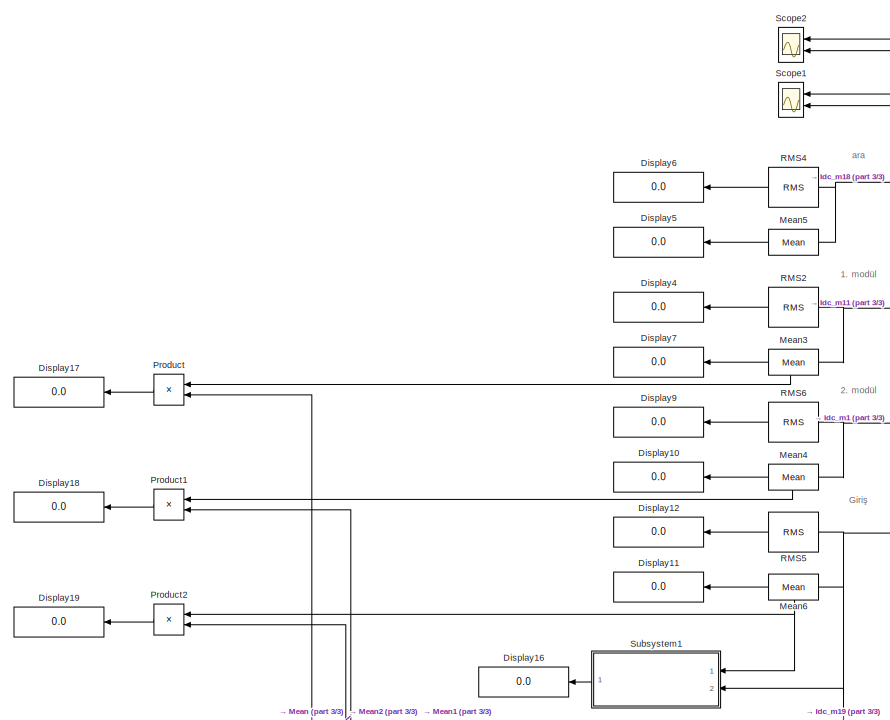
[diagram: root canvas - part 1/3, top left region]
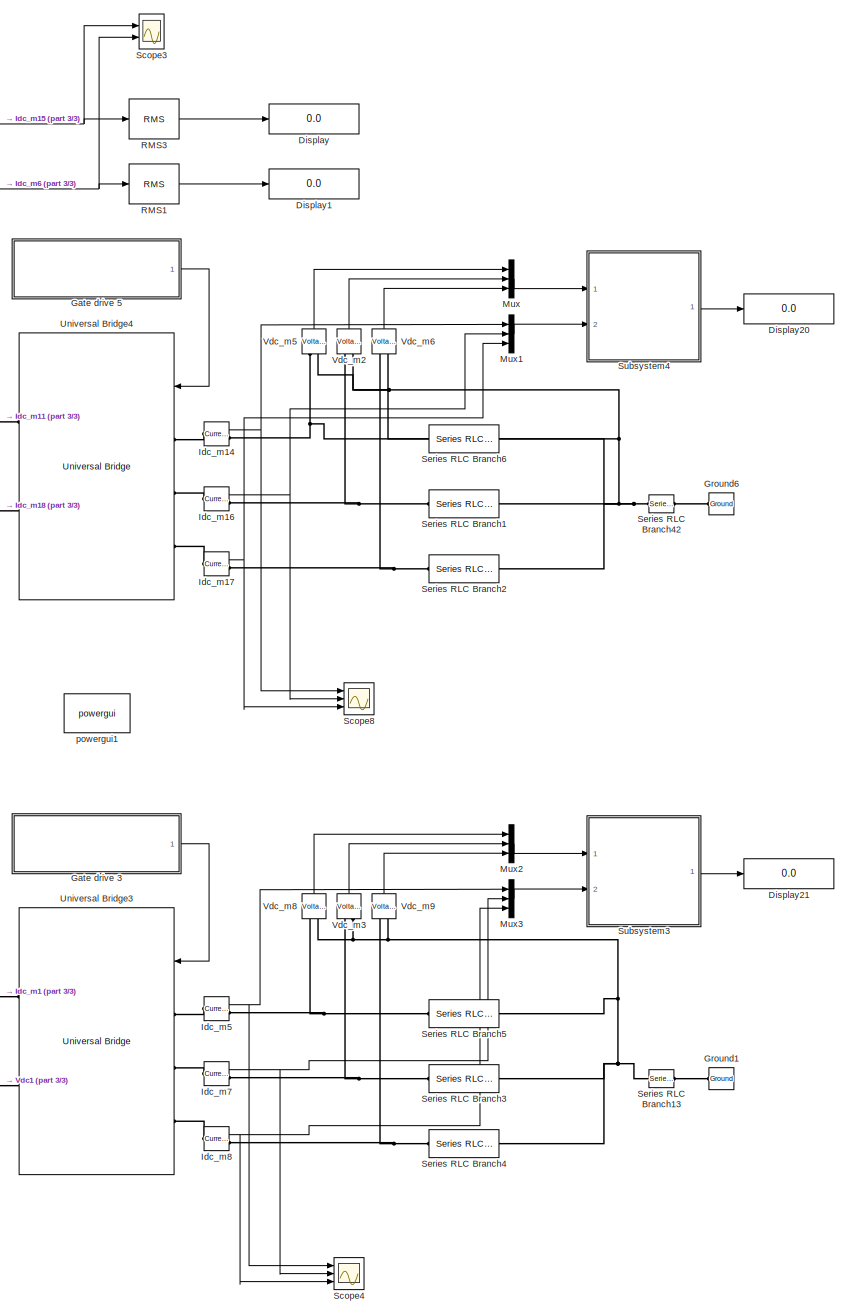
[diagram: root canvas - part 2/3, right side, full height]
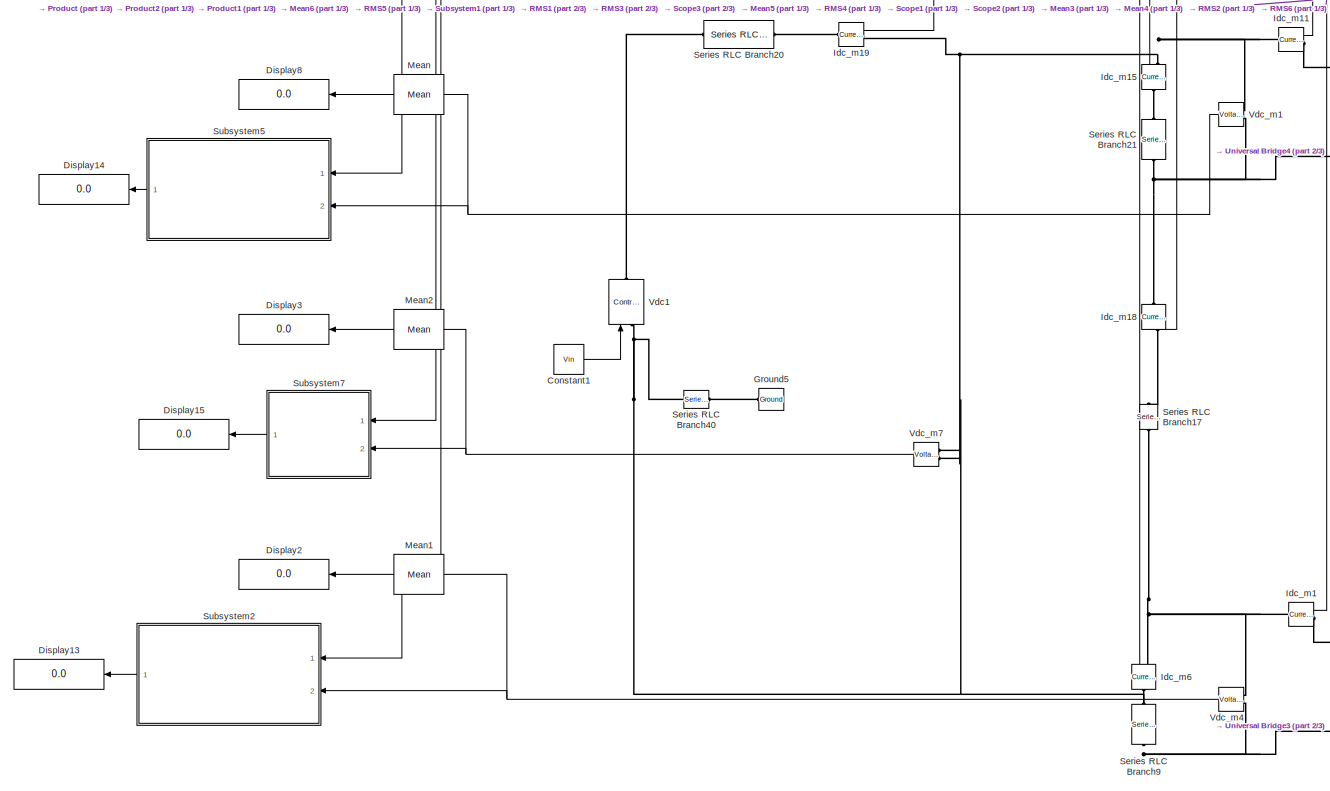
[diagram: root canvas - part 3/3, bottom left region]
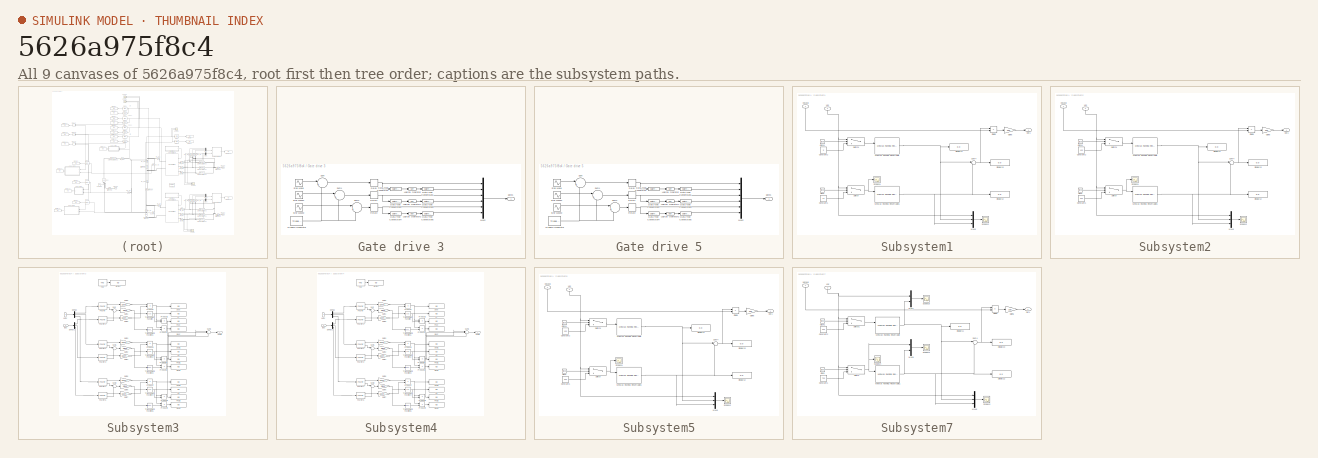
[diagram: thumbnail index - all 9 canvases of the model, root first then tree order]
MODEL slx_5626a975f8c4
KIND model
CONFIG AbsTol = auto
CONFIG FixedStep = Ts
CONFIG MaxStep = auto
CONFIG MinStep = auto
CONFIG RelTol = 1e-3
CONFIG SampleTimeConstraint = Unconstrained
CONFIG Solver = ode4
CONFIG SolverMode = Auto
CONFIG SolverName = ode4
CONFIG StartTime = 0.0
CONFIG StopTime = Tfinal
BLOCK [Constant] Constant1
  Value = Vin
BLOCK [Display] Display
  Decimation = 1
  Ports = [1]
BLOCK [Display] Display1
  Decimation = 1
  Ports = [1]
BLOCK [Display] Display10
  Decimation = 1
  Ports = [1]
BLOCK [Display] Display11
  Decimation = 1
  Ports = [1]
BLOCK [Display] Display12
  Decimation = 1
  Ports = [1]
BLOCK [Display] Display13
  Decimation = 1
  Ports = [1]
BLOCK [Display] Display14
  Decimation = 1
  Ports = [1]
BLOCK [Display] Display15
  Decimation = 1
  Ports = [1]
BLOCK [Display] Display16
  Decimation = 1
  Ports = [1]
BLOCK [Display] Display17
  Decimation = 1
  Ports = [1]
BLOCK [Display] Display18
  Decimation = 1
  Ports = [1]
BLOCK [Display] Display19
  Decimation = 1
  Ports = [1]
BLOCK [Display] Display2
  Decimation = 1
  Ports = [1]
BLOCK [Display] Display20
  Decimation = 1
  Ports = [1]
BLOCK [Display] Display21
  Decimation = 1
  Ports = [1]
BLOCK [Display] Display3
  Decimation = 1
  Ports = [1]
BLOCK [Display] Display4
  Decimation = 1
  Ports = [1]
BLOCK [Display] Display5
  Decimation = 1
  Ports = [1]
BLOCK [Display] Display6
  Decimation = 1
  Ports = [1]
BLOCK [Display] Display7
  Decimation = 1
  Ports = [1]
BLOCK [Display] Display8
  Decimation = 1
  Ports = [1]
BLOCK [Display] Display9
  Decimation = 1
  Ports = [1]
BLOCK [SubSystem] Gate drive 3
  Ports = [0, 1]
  RequestExecContextInheritance = off
  Variant = off
BLOCK [DataTypeConversion] Gate drive 3/Data Type Conversion
  OutDataTypeStr = boolean
  RndMeth = Floor
  SaturateOnIntegerOverflow = off
BLOCK [DataTypeConversion] Gate drive 3/Data Type Conversion1
  OutDataTypeStr = double
  RndMeth = Floor
  SaturateOnIntegerOverflow = off
BLOCK [DataTypeConversion] Gate drive 3/Data Type Conversion2
  OutDataTypeStr = boolean
  RndMeth = Floor
  SaturateOnIntegerOverflow = off
BLOCK [DataTypeConversion] Gate drive 3/Data Type Conversion3
  OutDataTypeStr = double
  RndMeth = Floor
  SaturateOnIntegerOverflow = off
BLOCK [DataTypeConversion] Gate drive 3/Data Type Conversion4
  OutDataTypeStr = boolean
  RndMeth = Floor
  SaturateOnIntegerOverflow = off
BLOCK [DataTypeConversion] Gate drive 3/Data Type Conversion5
  OutDataTypeStr = double
  RndMeth = Floor
  SaturateOnIntegerOverflow = off
BLOCK [Logic] Gate drive 3/Logical Operator
  AllPortsSameDT = off
  Operator = NOT
  OutDataTypeStr = boolean
  Ports = [1, 1]
BLOCK [Logic] Gate drive 3/Logical Operator1
  AllPortsSameDT = off
  Operator = NOT
  OutDataTypeStr = boolean
  Ports = [1, 1]
BLOCK [Logic] Gate drive 3/Logical Operator2
  AllPortsSameDT = off
  Operator = NOT
  OutDataTypeStr = boolean
  Ports = [1, 1]
BLOCK [Mux] Gate drive 3/Mux2
  DisplayOption = bar
  Inputs = 6
  Ports = [6, 1]
BLOCK [Relay] Gate drive 3/Relay
  InputProcessing = Elements as channels (sample based)
BLOCK [Relay] Gate drive 3/Relay1
  InputProcessing = Elements as channels (sample based)
BLOCK [Relay] Gate drive 3/Relay2
  InputProcessing = Elements as channels (sample based)
BLOCK [Sin] Gate drive 3/Sine Wave
  Amplitude = ma2
  Frequency = wout
  Phase = delta
  Ports = [0, 1]
  SampleTime = 0
BLOCK [Sin] Gate drive 3/Sine Wave1
  Amplitude = ma2
  Frequency = wout
  Phase = -2*pi/3+delta
  Ports = [0, 1]
  SampleTime = 0
BLOCK [Sin] Gate drive 3/Sine Wave2
  Amplitude = ma2
  Frequency = wout
  Phase = 2*pi/3+delta
  Ports = [0, 1]
  SampleTime = 0
BLOCK [Sum] Gate drive 3/Sum
  IconShape = round
  InputSameDT = off
  Inputs = |+-
  OutDataTypeStr = Inherit: Inherit via internal rule
  Ports = [2, 1]
  SaturateOnIntegerOverflow = off
BLOCK [Sum] Gate drive 3/Sum1
  IconShape = round
  InputSameDT = off
  Inputs = |+-
  OutDataTypeStr = Inherit: Inherit via internal rule
  Ports = [2, 1]
  SaturateOnIntegerOverflow = off
BLOCK [Sum] Gate drive 3/Sum2
  IconShape = round
  InputSameDT = off
  Inputs = |+-
  OutDataTypeStr = Inherit: Inherit via internal rule
  Ports = [2, 1]
  SaturateOnIntegerOverflow = off
BLOCK [Reference] Gate drive 3/Triangle Generator  REF=powerlib_meascontrol/Pulse & Signal
Generators/Triangle
Generator
  Ports = [0, 1]
  SourceBlock = powerlib_meascontrol/Pulse & Signal\nGenerators/Triangle\nGenerator
  SourceType = Triangle Generator
BLOCK [Outport] Gate drive 3/gate1
  IconDisplay = Port number
BLOCK [SubSystem] Gate drive 5
  Ports = [0, 1]
  RequestExecContextInheritance = off
  Variant = off
BLOCK [DataTypeConversion] Gate drive 5/Data Type Conversion
  OutDataTypeStr = boolean
  RndMeth = Floor
  SaturateOnIntegerOverflow = off
BLOCK [DataTypeConversion] Gate drive 5/Data Type Conversion1
  OutDataTypeStr = double
  RndMeth = Floor
  SaturateOnIntegerOverflow = off
BLOCK [DataTypeConversion] Gate drive 5/Data Type Conversion2
  OutDataTypeStr = boolean
  RndMeth = Floor
  SaturateOnIntegerOverflow = off
BLOCK [DataTypeConversion] Gate drive 5/Data Type Conversion3
  OutDataTypeStr = double
  RndMeth = Floor
  SaturateOnIntegerOverflow = off
BLOCK [DataTypeConversion] Gate drive 5/Data Type Conversion4
  OutDataTypeStr = boolean
  RndMeth = Floor
  SaturateOnIntegerOverflow = off
BLOCK [DataTypeConversion] Gate drive 5/Data Type Conversion5
  OutDataTypeStr = double
  RndMeth = Floor
  SaturateOnIntegerOverflow = off
BLOCK [Logic] Gate drive 5/Logical Operator
  AllPortsSameDT = off
  Operator = NOT
  OutDataTypeStr = boolean
  Ports = [1, 1]
BLOCK [Logic] Gate drive 5/Logical Operator1
  AllPortsSameDT = off
  Operator = NOT
  OutDataTypeStr = boolean
  Ports = [1, 1]
BLOCK [Logic] Gate drive 5/Logical Operator2
  AllPortsSameDT = off
  Operator = NOT
  OutDataTypeStr = boolean
  Ports = [1, 1]
BLOCK [Mux] Gate drive 5/Mux2
  DisplayOption = bar
  Inputs = 6
  Ports = [6, 1]
BLOCK [Relay] Gate drive 5/Relay
  InputProcessing = Elements as channels (sample based)
BLOCK [Relay] Gate drive 5/Relay1
  InputProcessing = Elements as channels (sample based)
BLOCK [Relay] Gate drive 5/Relay2
  InputProcessing = Elements as channels (sample based)
BLOCK [Sin] Gate drive 5/Sine Wave
  Amplitude = ma1
  Frequency = wout
  Phase = delta
  Ports = [0, 1]
  SampleTime = 0
BLOCK [Sin] Gate drive 5/Sine Wave1
  Amplitude = ma1
  Frequency = wout
  Phase = -2*pi/3+delta
  Ports = [0, 1]
  SampleTime = 0
BLOCK [Sin] Gate drive 5/Sine Wave2
  Amplitude = ma1
  Frequency = wout
  Phase = 2*pi/3+delta
  Ports = [0, 1]
  SampleTime = 0
BLOCK [Sum] Gate drive 5/Sum
  IconShape = round
  InputSameDT = off
  Inputs = |+-
  OutDataTypeStr = Inherit: Inherit via internal rule
  Ports = [2, 1]
  SaturateOnIntegerOverflow = off
BLOCK [Sum] Gate drive 5/Sum1
  IconShape = round
  InputSameDT = off
  Inputs = |+-
  OutDataTypeStr = Inherit: Inherit via internal rule
  Ports = [2, 1]
  SaturateOnIntegerOverflow = off
BLOCK [Sum] Gate drive 5/Sum2
  IconShape = round
  InputSameDT = off
  Inputs = |+-
  OutDataTypeStr = Inherit: Inherit via internal rule
  Ports = [2, 1]
  SaturateOnIntegerOverflow = off
BLOCK [Reference] Gate drive 5/Triangle Generator  REF=powerlib_meascontrol/Pulse & Signal
Generators/Triangle
Generator
  Ports = [0, 1]
  SourceBlock = powerlib_meascontrol/Pulse & Signal\nGenerators/Triangle\nGenerator
  SourceType = Triangle Generator
BLOCK [Outport] Gate drive 5/gate1
  IconDisplay = Port number
BLOCK [Reference] Ground1  REF=powerlib/Elements/Ground
  Ports = [0, 0, 0, 0, 0, 1]
  SourceBlock = powerlib/Elements/Ground
  SourceType = Ground
BLOCK [Reference] Ground5  REF=powerlib/Elements/Ground
  Ports = [0, 0, 0, 0, 0, 1]
  SourceBlock = powerlib/Elements/Ground
  SourceType = Ground
BLOCK [Reference] Ground6  REF=powerlib/Elements/Ground
  Ports = [0, 0, 0, 0, 0, 1]
  SourceBlock = powerlib/Elements/Ground
  SourceType = Ground
BLOCK [Reference] Idc_m1  REF=powerlib/Measurements/Current Measurement
  Ports = [0, 1, 0, 0, 0, 1, 1]
  SourceBlock = powerlib/Measurements/Current Measurement
  SourceType = Current Measurement
BLOCK [Reference] Idc_m11  REF=powerlib/Measurements/Current Measurement
  Ports = [0, 1, 0, 0, 0, 1, 1]
  SourceBlock = powerlib/Measurements/Current Measurement
  SourceType = Current Measurement
BLOCK [Reference] Idc_m14  REF=powerlib/Measurements/Current Measurement
  Ports = [0, 1, 0, 0, 0, 1, 1]
  SourceBlock = powerlib/Measurements/Current Measurement
  SourceType = Current Measurement
BLOCK [Reference] Idc_m15  REF=powerlib/Measurements/Current Measurement
  Ports = [0, 1, 0, 0, 0, 1, 1]
  SourceBlock = powerlib/Measurements/Current Measurement
  SourceType = Current Measurement
BLOCK [Reference] Idc_m16  REF=powerlib/Measurements/Current Measurement
  Ports = [0, 1, 0, 0, 0, 1, 1]
  SourceBlock = powerlib/Measurements/Current Measurement
  SourceType = Current Measurement
BLOCK [Reference] Idc_m17  REF=powerlib/Measurements/Current Measurement
  Ports = [0, 1, 0, 0, 0, 1, 1]
  SourceBlock = powerlib/Measurements/Current Measurement
  SourceType = Current Measurement
BLOCK [Reference] Idc_m18  REF=powerlib/Measurements/Current Measurement
  Ports = [0, 1, 0, 0, 0, 1, 1]
  SourceBlock = powerlib/Measurements/Current Measurement
  SourceType = Current Measurement
BLOCK [Reference] Idc_m19  REF=powerlib/Measurements/Current Measurement
  Ports = [0, 1, 0, 0, 0, 1, 1]
  SourceBlock = powerlib/Measurements/Current Measurement
  SourceType = Current Measurement
BLOCK [Reference] Idc_m5  REF=powerlib/Measurements/Current Measurement
  Ports = [0, 1, 0, 0, 0, 1, 1]
  SourceBlock = powerlib/Measurements/Current Measurement
  SourceType = Current Measurement
BLOCK [Reference] Idc_m6  REF=powerlib/Measurements/Current Measurement
  Ports = [0, 1, 0, 0, 0, 1, 1]
  SourceBlock = powerlib/Measurements/Current Measurement
  SourceType = Current Measurement
BLOCK [Reference] Idc_m7  REF=powerlib/Measurements/Current Measurement
  Ports = [0, 1, 0, 0, 0, 1, 1]
  SourceBlock = powerlib/Measurements/Current Measurement
  SourceType = Current Measurement
BLOCK [Reference] Idc_m8  REF=powerlib/Measurements/Current Measurement
  Ports = [0, 1, 0, 0, 0, 1, 1]
  SourceBlock = powerlib/Measurements/Current Measurement
  SourceType = Current Measurement
BLOCK [Reference] Mean  REF=powerlib_meascontrol/Measurements/Mean
  Ports = [1, 1]
  SourceBlock = powerlib_meascontrol/Measurements/Mean
  SourceType = Mean
BLOCK [Reference] Mean1  REF=powerlib_meascontrol/Measurements/Mean
  Ports = [1, 1]
  SourceBlock = powerlib_meascontrol/Measurements/Mean
  SourceType = Mean
BLOCK [Reference] Mean2  REF=powerlib_meascontrol/Measurements/Mean
  Ports = [1, 1]
  SourceBlock = powerlib_meascontrol/Measurements/Mean
  SourceType = Mean
BLOCK [Reference] Mean3  REF=powerlib_meascontrol/Measurements/Mean
  Ports = [1, 1]
  SourceBlock = powerlib_meascontrol/Measurements/Mean
  SourceType = Mean
BLOCK [Reference] Mean4  REF=powerlib_meascontrol/Measurements/Mean
  Ports = [1, 1]
  SourceBlock = powerlib_meascontrol/Measurements/Mean
  SourceType = Mean
BLOCK [Reference] Mean5  REF=powerlib_meascontrol/Measurements/Mean
  Ports = [1, 1]
  SourceBlock = powerlib_meascontrol/Measurements/Mean
  SourceType = Mean
BLOCK [Reference] Mean6  REF=powerlib_meascontrol/Measurements/Mean
  Ports = [1, 1]
  SourceBlock = powerlib_meascontrol/Measurements/Mean
  SourceType = Mean
BLOCK [Mux] Mux
  DisplayOption = bar
  Inputs = 3
  Ports = [3, 1]
BLOCK [Mux] Mux1
  DisplayOption = bar
  Inputs = 3
  Ports = [3, 1]
BLOCK [Mux] Mux2
  DisplayOption = bar
  Inputs = 3
  Ports = [3, 1]
BLOCK [Mux] Mux3
  DisplayOption = bar
  Inputs = 3
  Ports = [3, 1]
BLOCK [Product] Product
  InputSameDT = off
  OutDataTypeStr = Inherit: Inherit via internal rule
  Ports = [2, 1]
  RndMeth = Floor
  SaturateOnIntegerOverflow = off
BLOCK [Product] Product1
  InputSameDT = off
  OutDataTypeStr = Inherit: Inherit via internal rule
  Ports = [2, 1]
  RndMeth = Floor
  SaturateOnIntegerOverflow = off
BLOCK [Product] Product2
  InputSameDT = off
  OutDataTypeStr = Inherit: Inherit via internal rule
  Ports = [2, 1]
  RndMeth = Floor
  SaturateOnIntegerOverflow = off
BLOCK [Reference] RMS1  REF=powerlib_meascontrol/Measurements/RMS
  Ports = [1, 1]
  SourceBlock = powerlib_meascontrol/Measurements/RMS
  SourceType = RMS
BLOCK [Reference] RMS2  REF=powerlib_meascontrol/Measurements/RMS
  Ports = [1, 1]
  SourceBlock = powerlib_meascontrol/Measurements/RMS
  SourceType = RMS
BLOCK [Reference] RMS3  REF=powerlib_meascontrol/Measurements/RMS
  Ports = [1, 1]
  SourceBlock = powerlib_meascontrol/Measurements/RMS
  SourceType = RMS
BLOCK [Reference] RMS4  REF=powerlib_meascontrol/Measurements/RMS
  Ports = [1, 1]
  SourceBlock = powerlib_meascontrol/Measurements/RMS
  SourceType = RMS
BLOCK [Reference] RMS5  REF=powerlib_meascontrol/Measurements/RMS
  Ports = [1, 1]
  SourceBlock = powerlib_meascontrol/Measurements/RMS
  SourceType = RMS
BLOCK [Reference] RMS6  REF=powerlib_meascontrol/Measurements/RMS
  Ports = [1, 1]
  SourceBlock = powerlib_meascontrol/Measurements/RMS
  SourceType = RMS
BLOCK [Scope] Scope1
  NumInputPorts = 2
  Ports = [2]
  ScopeSpecificationString = Simulink.scopes.TimeScopeBlockCfg('CurrentConfiguration', extmgr.ConfigurationSet(extmgr.Configuration('Core','General UI',true),extmgr.Configuration('Core','Source UI',true),extmgr.Configuration('Sources','WiredSimulink',true,'DataLoggingVariableName','ScopeData1'),extmgr.Configuration('Visuals','Time Domain',true,'SerializedDisplays',{struct('MinYLimReal','7.82354','MaxYLimReal','7.88404','YLabe...<+1422ch>
BLOCK [Scope] Scope2
  NumInputPorts = 2
  Ports = [2]
  ScopeSpecificationString = Simulink.scopes.TimeScopeBlockCfg('CurrentConfiguration', extmgr.ConfigurationSet(extmgr.Configuration('Core','General UI',true),extmgr.Configuration('Core','Source UI',true),extmgr.Configuration('Sources','WiredSimulink',true,'DataLoggingVariableName','ScopeData2'),extmgr.Configuration('Visuals','Time Domain',true,'SerializedDisplays',{struct('MinYLimReal','-1.21967','MaxYLimReal','14.53262','YLa...<+1426ch>
BLOCK [Scope] Scope3
  NumInputPorts = 2
  Ports = [2]
  ScopeSpecificationString = Simulink.scopes.TimeScopeBlockCfg('CurrentConfiguration', extmgr.ConfigurationSet(extmgr.Configuration('Core','General UI',true),extmgr.Configuration('Core','Source UI',true),extmgr.Configuration('Sources','WiredSimulink',true,'DataLoggingVariableName','ScopeData3'),extmgr.Configuration('Visuals','Time Domain',true,'SerializedDisplays',{struct('MinYLimReal','-12.33938','MaxYLimReal','7.39208','YLa...<+1426ch>
BLOCK [Scope] Scope4
  NumInputPorts = 3
  Ports = [3]
  ScopeSpecificationString = Simulink.scopes.TimeScopeBlockCfg('CurrentConfiguration', extmgr.ConfigurationSet(extmgr.Configuration('Core','General UI',true),extmgr.Configuration('Core','Source UI',true),extmgr.Configuration('Sources','WiredSimulink',true,'DataLoggingVariableName','ScopeData1'),extmgr.Configuration('Visuals','Time Domain',true,'SerializedDisplays',{struct('MinYLimReal','-1.71839','MaxYLimReal','1.71899','YLab...<+1402ch>
BLOCK [Scope] Scope8
  NumInputPorts = 3
  Ports = [3]
  ScopeSpecificationString = Simulink.scopes.TimeScopeBlockCfg('CurrentConfiguration', extmgr.ConfigurationSet(extmgr.Configuration('Core','General UI',true),extmgr.Configuration('Core','Source UI',true),extmgr.Configuration('Sources','WiredSimulink',true,'DataLoggingVariableName','ScopeData4'),extmgr.Configuration('Visuals','Time Domain',true,'SerializedDisplays',{struct('MinYLimReal','-1.81979','MaxYLimReal','1.81986','YLab...<+1405ch>
BLOCK [Reference] Series RLC Branch1  REF=powerlib/Elements/Series RLC Branch
  Ports = [0, 0, 0, 0, 0, 1, 1]
  SourceBlock = powerlib/Elements/Series RLC Branch
  SourceType = Series RLC Branch
BLOCK [Reference] Series RLC Branch13  REF=powerlib/Elements/Series RLC Branch
  Ports = [0, 0, 0, 0, 0, 1, 1]
  SourceBlock = powerlib/Elements/Series RLC Branch
  SourceType = Series RLC Branch
BLOCK [Reference] Series RLC Branch17  REF=powerlib/Elements/Series RLC Branch
  Ports = [0, 0, 0, 0, 0, 1, 1]
  SourceBlock = powerlib/Elements/Series RLC Branch
  SourceType = Series RLC Branch
BLOCK [Reference] Series RLC Branch2  REF=powerlib/Elements/Series RLC Branch
  Ports = [0, 0, 0, 0, 0, 1, 1]
  SourceBlock = powerlib/Elements/Series RLC Branch
  SourceType = Series RLC Branch
BLOCK [Reference] Series RLC Branch20  REF=powerlib/Elements/Series RLC Branch
  Ports = [0, 0, 0, 0, 0, 1, 1]
  SourceBlock = powerlib/Elements/Series RLC Branch
  SourceType = Series RLC Branch
BLOCK [Reference] Series RLC Branch21  REF=powerlib/Elements/Series RLC Branch
  Ports = [0, 0, 0, 0, 0, 1, 1]
  SourceBlock = powerlib/Elements/Series RLC Branch
  SourceType = Series RLC Branch
BLOCK [Reference] Series RLC Branch3  REF=powerlib/Elements/Series RLC Branch
  Ports = [0, 0, 0, 0, 0, 1, 1]
  SourceBlock = powerlib/Elements/Series RLC Branch
  SourceType = Series RLC Branch
BLOCK [Reference] Series RLC Branch4  REF=powerlib/Elements/Series RLC Branch
  Ports = [0, 0, 0, 0, 0, 1, 1]
  SourceBlock = powerlib/Elements/Series RLC Branch
  SourceType = Series RLC Branch
BLOCK [Reference] Series RLC Branch40  REF=powerlib/Elements/Series RLC Branch
  Ports = [0, 0, 0, 0, 0, 1, 1]
  SourceBlock = powerlib/Elements/Series RLC Branch
  SourceType = Series RLC Branch
BLOCK [Reference] Series RLC Branch42  REF=powerlib/Elements/Series RLC Branch
  Ports = [0, 0, 0, 0, 0, 1, 1]
  SourceBlock = powerlib/Elements/Series RLC Branch
  SourceType = Series RLC Branch
BLOCK [Reference] Series RLC Branch5  REF=powerlib/Elements/Series RLC Branch
  Ports = [0, 0, 0, 0, 0, 1, 1]
  SourceBlock = powerlib/Elements/Series RLC Branch
  SourceType = Series RLC Branch
BLOCK [Reference] Series RLC Branch6  REF=powerlib/Elements/Series RLC Branch
  Ports = [0, 0, 0, 0, 0, 1, 1]
  SourceBlock = powerlib/Elements/Series RLC Branch
  SourceType = Series RLC Branch
BLOCK [Reference] Series RLC Branch9  REF=powerlib/Elements/Series RLC Branch
  Ports = [0, 0, 0, 0, 0, 1, 1]
  SourceBlock = powerlib/Elements/Series RLC Branch
  SourceType = Series RLC Branch
BLOCK [SubSystem] Subsystem1
  Ports = [2, 1]
  RequestExecContextInheritance = off
  Variant = off
BLOCK [Clock] Subsystem1/Clock
BLOCK [Clock] Subsystem1/Clock1
BLOCK [Constant] Subsystem1/Constant1
  SampleTime = Ts
  Value = 10
BLOCK [Constant] Subsystem1/Constant2
  SampleTime = Ts
  Value = 5
BLOCK [Display] Subsystem1/Display11
  Decimation = 1
  Ports = [1]
BLOCK [Display] Subsystem1/Display12
  Decimation = 1
  Ports = [1]
BLOCK [Display] Subsystem1/Display13
  Decimation = 1
  Ports = [1]
BLOCK [Product] Subsystem1/Divide
  InputSameDT = off
  Inputs = */
  OutDataTypeStr = Inherit: Inherit via internal rule
  Ports = [2, 1]
  RndMeth = Floor
  SaturateOnIntegerOverflow = off
BLOCK [Gain] Subsystem1/Gain6
  Gain = 100
  OutDataTypeStr = Inherit: Inherit via internal rule
  ParamDataTypeStr = Inherit: Inherit via internal rule
  SaturateOnIntegerOverflow = off
BLOCK [Reference] Subsystem1/MinMax Running Resettable  REF=simulink/Math
Operations/MinMax
Running
Resettable
  Ports = [2, 1]
  SourceBlock = simulink/Math\nOperations/MinMax\nRunning\nResettable
  SourceType = MinMax Running Resettable
BLOCK [Reference] Subsystem1/MinMax Running Resettable1  REF=simulink/Math
Operations/MinMax
Running
Resettable
  Ports = [2, 1]
  SourceBlock = simulink/Math\nOperations/MinMax\nRunning\nResettable
  SourceType = MinMax Running Resettable
BLOCK [Mux] Subsystem1/Mux6
  DisplayOption = bar
  Inputs = 3
  Ports = [3, 1]
BLOCK [Outport] Subsystem1/Out1
  IconDisplay = Port number
BLOCK [Scope] Subsystem1/Scope12
  Ports = [1]
  ScopeSpecificationString = Simulink.scopes.TimeScopeBlockCfg('CurrentConfiguration', extmgr.ConfigurationSet(extmgr.Configuration('Core','General UI',true),extmgr.Configuration('Core','Source UI',true),extmgr.Configuration('Sources','WiredSimulink',true,'DataLoggingVariableName','ScopeData11','DataLoggingSaveFormat','StructureWithTime','DataLoggingDecimation','1','DataLoggingDecimateData',true),extmgr.Configuration('Visuals...<+1744ch>
BLOCK [Scope] Subsystem1/Scope14
  Ports = [1]
  ScopeSpecificationString = C++SS(StrPVP('Location','[1, 48, 1847, 1079]'),StrPVP('Open','off'),StrPVP('ZoomMode','yonly'),MxPVP('AxesTitles',24,'struct(''axes1'',''%<SignalLabel>'')'),MxPVP('ScopeGraphics',28,'struct(''FigureColor'',''[0.5 0.5 0.5]'',''AxesColor'',''[0 0 0]'',''AxesTickColor'',''[1 1 1]'',''LineColors'',''[1 1 0;1 0 1;0 1 1;1 0 0;0 1 0;0 0 1]'',''LineStyles'',''-|-|-|-|-|-'',''LineWidths'',''[0.5 0.5 0.5 0....<+341ch>  <repeated x4 — deduplicated; at blocks: Scope14>
BLOCK [Sum] Subsystem1/Sum4
  IconShape = round
  InputSameDT = off
  Inputs = |+-
  OutDataTypeStr = Inherit: Inherit via internal rule
  Ports = [2, 1]
  SaturateOnIntegerOverflow = off
BLOCK [Switch] Subsystem1/Switch
  InputSameDT = off
  SaturateOnIntegerOverflow = off
  Threshold = Ripth
BLOCK [Switch] Subsystem1/Switch1
  InputSameDT = off
  SaturateOnIntegerOverflow = off
  Threshold = Ripth
BLOCK [Inport] Subsystem1/Vdcavg
  IconDisplay = Port number
BLOCK [Inport] Subsystem1/vdc
  IconDisplay = Port number
  Port = 2
BLOCK [SubSystem] Subsystem2
  Ports = [2, 1]
  RequestExecContextInheritance = off
  Variant = off
BLOCK [Clock] Subsystem2/Clock
BLOCK [Clock] Subsystem2/Clock1
BLOCK [Constant] Subsystem2/Constant1
  SampleTime = Ts
  Value = 350
BLOCK [Constant] Subsystem2/Constant2
  SampleTime = Ts
  Value = 150
BLOCK [Display] Subsystem2/Display11
  Decimation = 1
  Ports = [1]
BLOCK [Display] Subsystem2/Display12
  Decimation = 1
  Ports = [1]
BLOCK [Display] Subsystem2/Display13
  Decimation = 1
  Ports = [1]
BLOCK [Product] Subsystem2/Divide
  InputSameDT = off
  Inputs = */
  OutDataTypeStr = Inherit: Inherit via internal rule
  Ports = [2, 1]
  RndMeth = Floor
  SaturateOnIntegerOverflow = off
BLOCK [Gain] Subsystem2/Gain6
  Gain = 100
  OutDataTypeStr = Inherit: Inherit via internal rule
  ParamDataTypeStr = Inherit: Inherit via internal rule
  SaturateOnIntegerOverflow = off
BLOCK [Reference] Subsystem2/MinMax Running Resettable  REF=simulink/Math
Operations/MinMax
Running
Resettable
  Ports = [2, 1]
  SourceBlock = simulink/Math\nOperations/MinMax\nRunning\nResettable
  SourceType = MinMax Running Resettable
BLOCK [Reference] Subsystem2/MinMax Running Resettable1  REF=simulink/Math
Operations/MinMax
Running
Resettable
  Ports = [2, 1]
  SourceBlock = simulink/Math\nOperations/MinMax\nRunning\nResettable
  SourceType = MinMax Running Resettable
BLOCK [Mux] Subsystem2/Mux6
  DisplayOption = bar
  Inputs = 3
  Ports = [3, 1]
BLOCK [Outport] Subsystem2/Out1
  IconDisplay = Port number
BLOCK [Scope] Subsystem2/Scope12
  Ports = [1]
  ScopeSpecificationString = Simulink.scopes.TimeScopeBlockCfg('CurrentConfiguration', extmgr.ConfigurationSet(extmgr.Configuration('Core','General UI',true),extmgr.Configuration('Core','Source UI',true),extmgr.Configuration('Sources','WiredSimulink',true,'DataLoggingVariableName','ScopeData11','DataLoggingSaveFormat','StructureWithTime','DataLoggingDecimation','1','DataLoggingDecimateData',true),extmgr.Configuration('Visuals...<+1753ch>
BLOCK [Scope] Subsystem2/Scope14
  Ports = [1]
BLOCK [Sum] Subsystem2/Sum4
  IconShape = round
  InputSameDT = off
  Inputs = |+-
  OutDataTypeStr = Inherit: Inherit via internal rule
  Ports = [2, 1]
  SaturateOnIntegerOverflow = off
BLOCK [Switch] Subsystem2/Switch
  InputSameDT = off
  SaturateOnIntegerOverflow = off
  Threshold = Ripth
BLOCK [Switch] Subsystem2/Switch1
  InputSameDT = off
  SaturateOnIntegerOverflow = off
  Threshold = Ripth
BLOCK [Inport] Subsystem2/Vdcavg
  IconDisplay = Port number
BLOCK [Inport] Subsystem2/vdc
  IconDisplay = Port number
  Port = 2
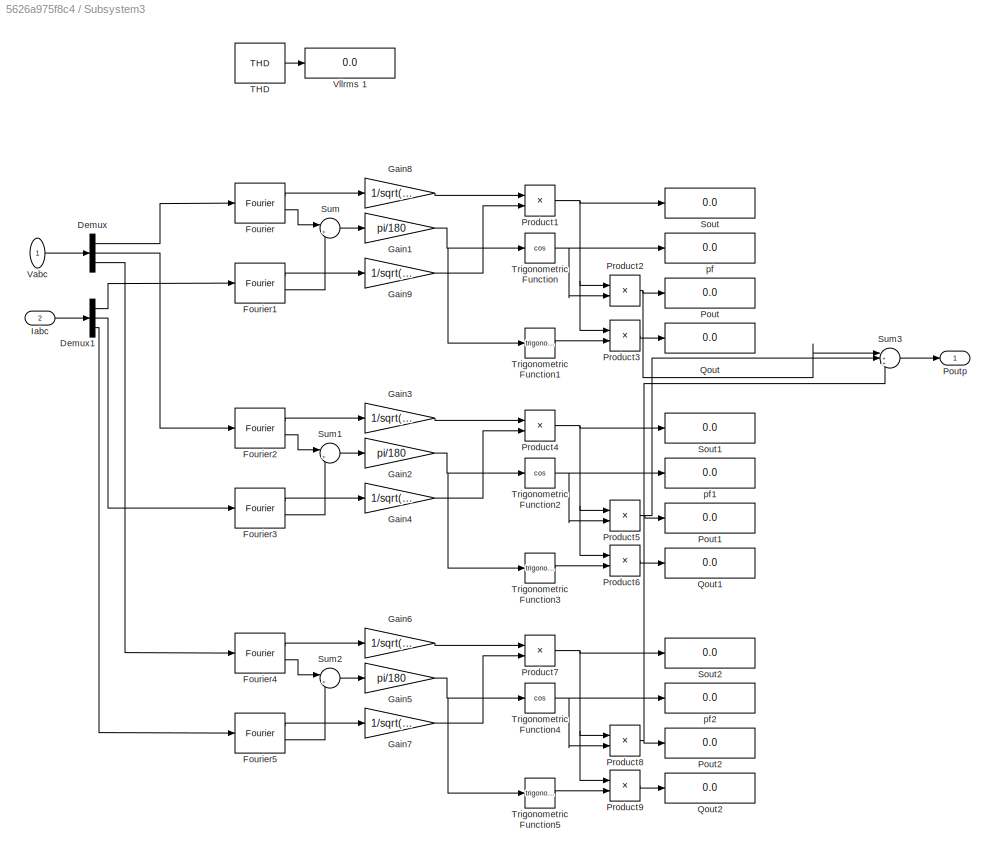
BLOCK [SubSystem] Subsystem3
  Ports = [2, 1]
  RequestExecContextInheritance = off
  Variant = off
BLOCK [Demux] Subsystem3/Demux
  DisplayOption = bar
  Outputs = 3
  Ports = [1, 3]
BLOCK [Demux] Subsystem3/Demux1
  DisplayOption = bar
  Outputs = 3
  Ports = [1, 3]
BLOCK [Reference] Subsystem3/Fourier  REF=powerlib_meascontrol/Measurements/Fourier
  Ports = [1, 2]
  SourceBlock = powerlib_meascontrol/Measurements/Fourier
  SourceType = Fourier
BLOCK [Reference] Subsystem3/Fourier1  REF=powerlib_meascontrol/Measurements/Fourier
  Ports = [1, 2]
  SourceBlock = powerlib_meascontrol/Measurements/Fourier
  SourceType = Fourier
BLOCK [Reference] Subsystem3/Fourier2  REF=powerlib_meascontrol/Measurements/Fourier
  Ports = [1, 2]
  SourceBlock = powerlib_meascontrol/Measurements/Fourier
  SourceType = Fourier
BLOCK [Reference] Subsystem3/Fourier3  REF=powerlib_meascontrol/Measurements/Fourier
  Ports = [1, 2]
  SourceBlock = powerlib_meascontrol/Measurements/Fourier
  SourceType = Fourier
BLOCK [Reference] Subsystem3/Fourier4  REF=powerlib_meascontrol/Measurements/Fourier
  Ports = [1, 2]
  SourceBlock = powerlib_meascontrol/Measurements/Fourier
  SourceType = Fourier
BLOCK [Reference] Subsystem3/Fourier5  REF=powerlib_meascontrol/Measurements/Fourier
  Ports = [1, 2]
  SourceBlock = powerlib_meascontrol/Measurements/Fourier
  SourceType = Fourier
BLOCK [Gain] Subsystem3/Gain1
  Gain = pi/180
  OutDataTypeStr = Inherit: Inherit via internal rule
  ParamDataTypeStr = Inherit: Inherit via internal rule
  SaturateOnIntegerOverflow = off
BLOCK [Gain] Subsystem3/Gain2
  Gain = pi/180
  OutDataTypeStr = Inherit: Inherit via internal rule
  ParamDataTypeStr = Inherit: Inherit via internal rule
  SaturateOnIntegerOverflow = off
BLOCK [Gain] Subsystem3/Gain3
  Gain = 1/sqrt(2)
  OutDataTypeStr = Inherit: Inherit via internal rule
  ParamDataTypeStr = Inherit: Inherit via internal rule
  SaturateOnIntegerOverflow = off
BLOCK [Gain] Subsystem3/Gain4
  Gain = 1/sqrt(2)
  OutDataTypeStr = Inherit: Inherit via internal rule
  ParamDataTypeStr = Inherit: Inherit via internal rule
  SaturateOnIntegerOverflow = off
BLOCK [Gain] Subsystem3/Gain5
  Gain = pi/180
  OutDataTypeStr = Inherit: Inherit via internal rule
  ParamDataTypeStr = Inherit: Inherit via internal rule
  SaturateOnIntegerOverflow = off
BLOCK [Gain] Subsystem3/Gain6
  Gain = 1/sqrt(2)
  OutDataTypeStr = Inherit: Inherit via internal rule
  ParamDataTypeStr = Inherit: Inherit via internal rule
  SaturateOnIntegerOverflow = off
BLOCK [Gain] Subsystem3/Gain7
  Gain = 1/sqrt(2)
  OutDataTypeStr = Inherit: Inherit via internal rule
  ParamDataTypeStr = Inherit: Inherit via internal rule
  SaturateOnIntegerOverflow = off
BLOCK [Gain] Subsystem3/Gain8
  Gain = 1/sqrt(2)
  OutDataTypeStr = Inherit: Inherit via internal rule
  ParamDataTypeStr = Inherit: Inherit via internal rule
  SaturateOnIntegerOverflow = off
BLOCK [Gain] Subsystem3/Gain9
  Gain = 1/sqrt(2)
  OutDataTypeStr = Inherit: Inherit via internal rule
  ParamDataTypeStr = Inherit: Inherit via internal rule
  SaturateOnIntegerOverflow = off
BLOCK [Inport] Subsystem3/Iabc
  IconDisplay = Port number
  Port = 2
BLOCK [Display] Subsystem3/Pout
  Decimation = 1
  Ports = [1]
BLOCK [Display] Subsystem3/Pout1
  Decimation = 1
  Ports = [1]
BLOCK [Display] Subsystem3/Pout2
  Decimation = 1
  Ports = [1]
BLOCK [Outport] Subsystem3/Poutp
  IconDisplay = Port number
BLOCK [Product] Subsystem3/Product1
  InputSameDT = off
  OutDataTypeStr = Inherit: Inherit via internal rule
  Ports = [2, 1]
  RndMeth = Floor
  SaturateOnIntegerOverflow = off
BLOCK [Product] Subsystem3/Product2
  InputSameDT = off
  OutDataTypeStr = Inherit: Inherit via internal rule
  Ports = [2, 1]
  RndMeth = Floor
  SaturateOnIntegerOverflow = off
BLOCK [Product] Subsystem3/Product3
  InputSameDT = off
  OutDataTypeStr = Inherit: Inherit via internal rule
  Ports = [2, 1]
  RndMeth = Floor
  SaturateOnIntegerOverflow = off
BLOCK [Product] Subsystem3/Product4
  InputSameDT = off
  OutDataTypeStr = Inherit: Inherit via internal rule
  Ports = [2, 1]
  RndMeth = Floor
  SaturateOnIntegerOverflow = off
BLOCK [Product] Subsystem3/Product5
  InputSameDT = off
  OutDataTypeStr = Inherit: Inherit via internal rule
  Ports = [2, 1]
  RndMeth = Floor
  SaturateOnIntegerOverflow = off
BLOCK [Product] Subsystem3/Product6
  InputSameDT = off
  OutDataTypeStr = Inherit: Inherit via internal rule
  Ports = [2, 1]
  RndMeth = Floor
  SaturateOnIntegerOverflow = off
BLOCK [Product] Subsystem3/Product7
  InputSameDT = off
  OutDataTypeStr = Inherit: Inherit via internal rule
  Ports = [2, 1]
  RndMeth = Floor
  SaturateOnIntegerOverflow = off
BLOCK [Product] Subsystem3/Product8
  InputSameDT = off
  OutDataTypeStr = Inherit: Inherit via internal rule
  Ports = [2, 1]
  RndMeth = Floor
  SaturateOnIntegerOverflow = off
BLOCK [Product] Subsystem3/Product9
  InputSameDT = off
  OutDataTypeStr = Inherit: Inherit via internal rule
  Ports = [2, 1]
  RndMeth = Floor
  SaturateOnIntegerOverflow = off
BLOCK [Display] Subsystem3/Qout
  Decimation = 1
  Ports = [1]
BLOCK [Display] Subsystem3/Qout1
  Decimation = 1
  Ports = [1]
BLOCK [Display] Subsystem3/Qout2
  Decimation = 1
  Ports = [1]
BLOCK [Display] Subsystem3/Sout
  Decimation = 1
  Format = short_e
  Ports = [1]
BLOCK [Display] Subsystem3/Sout1
  Decimation = 1
  Format = short_e
  Ports = [1]
BLOCK [Display] Subsystem3/Sout2
  Decimation = 1
  Format = short_e
  Ports = [1]
BLOCK [Sum] Subsystem3/Sum
  IconShape = round
  InputSameDT = off
  Inputs = |+-
  OutDataTypeStr = Inherit: Inherit via internal rule
  Ports = [2, 1]
  SaturateOnIntegerOverflow = off
BLOCK [Sum] Subsystem3/Sum1
  IconShape = round
  InputSameDT = off
  Inputs = |+-
  OutDataTypeStr = Inherit: Inherit via internal rule
  Ports = [2, 1]
  SaturateOnIntegerOverflow = off
BLOCK [Sum] Subsystem3/Sum2
  IconShape = round
  InputSameDT = off
  Inputs = |+-
  OutDataTypeStr = Inherit: Inherit via internal rule
  Ports = [2, 1]
  SaturateOnIntegerOverflow = off
BLOCK [Sum] Subsystem3/Sum3
  IconShape = round
  InputSameDT = off
  Inputs = |+++
  OutDataTypeStr = Inherit: Inherit via internal rule
  Ports = [3, 1]
  SaturateOnIntegerOverflow = off
BLOCK [Reference] Subsystem3/THD  REF=powerlib_meascontrol/Measurements/THD
  Ports = [1, 1]
  SourceBlock = powerlib_meascontrol/Measurements/THD
  SourceType = THD
BLOCK [Trigonometry] Subsystem3/Trigonometric Function
  Operator = cos
  Ports = [1, 1]
BLOCK [Trigonometry] Subsystem3/Trigonometric Function1
  Ports = [1, 1]
BLOCK [Trigonometry] Subsystem3/Trigonometric Function2
  Operator = cos
  Ports = [1, 1]
BLOCK [Trigonometry] Subsystem3/Trigonometric Function3
  Ports = [1, 1]
BLOCK [Trigonometry] Subsystem3/Trigonometric Function4
  Operator = cos
  Ports = [1, 1]
BLOCK [Trigonometry] Subsystem3/Trigonometric Function5
  Ports = [1, 1]
BLOCK [Inport] Subsystem3/Vabc
  IconDisplay = Port number
BLOCK [Display] Subsystem3/Vllrms 1
  Decimation = 1
  Ports = [1]
BLOCK [Display] Subsystem3/pf
  Decimation = 1
  Ports = [1]
BLOCK [Display] Subsystem3/pf1
  Decimation = 1
  Ports = [1]
BLOCK [Display] Subsystem3/pf2
  Decimation = 1
  Ports = [1]
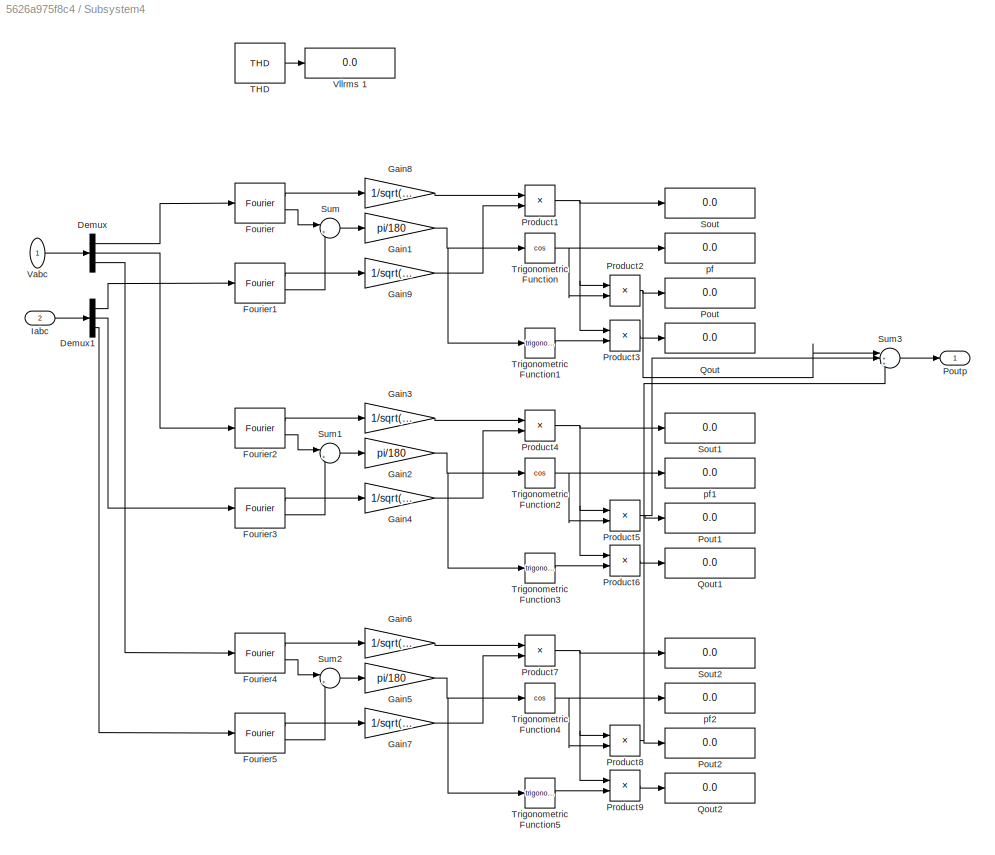
BLOCK [SubSystem] Subsystem4
  Ports = [2, 1]
  RequestExecContextInheritance = off
  Variant = off
BLOCK [Demux] Subsystem4/Demux
  DisplayOption = bar
  Outputs = 3
  Ports = [1, 3]
BLOCK [Demux] Subsystem4/Demux1
  DisplayOption = bar
  Outputs = 3
  Ports = [1, 3]
BLOCK [Reference] Subsystem4/Fourier  REF=powerlib_meascontrol/Measurements/Fourier
  Ports = [1, 2]
  SourceBlock = powerlib_meascontrol/Measurements/Fourier
  SourceType = Fourier
BLOCK [Reference] Subsystem4/Fourier1  REF=powerlib_meascontrol/Measurements/Fourier
  Ports = [1, 2]
  SourceBlock = powerlib_meascontrol/Measurements/Fourier
  SourceType = Fourier
BLOCK [Reference] Subsystem4/Fourier2  REF=powerlib_meascontrol/Measurements/Fourier
  Ports = [1, 2]
  SourceBlock = powerlib_meascontrol/Measurements/Fourier
  SourceType = Fourier
BLOCK [Reference] Subsystem4/Fourier3  REF=powerlib_meascontrol/Measurements/Fourier
  Ports = [1, 2]
  SourceBlock = powerlib_meascontrol/Measurements/Fourier
  SourceType = Fourier
BLOCK [Reference] Subsystem4/Fourier4  REF=powerlib_meascontrol/Measurements/Fourier
  Ports = [1, 2]
  SourceBlock = powerlib_meascontrol/Measurements/Fourier
  SourceType = Fourier
BLOCK [Reference] Subsystem4/Fourier5  REF=powerlib_meascontrol/Measurements/Fourier
  Ports = [1, 2]
  SourceBlock = powerlib_meascontrol/Measurements/Fourier
  SourceType = Fourier
BLOCK [Gain] Subsystem4/Gain1
  Gain = pi/180
  OutDataTypeStr = Inherit: Inherit via internal rule
  ParamDataTypeStr = Inherit: Inherit via internal rule
  SaturateOnIntegerOverflow = off
BLOCK [Gain] Subsystem4/Gain2
  Gain = pi/180
  OutDataTypeStr = Inherit: Inherit via internal rule
  ParamDataTypeStr = Inherit: Inherit via internal rule
  SaturateOnIntegerOverflow = off
BLOCK [Gain] Subsystem4/Gain3
  Gain = 1/sqrt(2)
  OutDataTypeStr = Inherit: Inherit via internal rule
  ParamDataTypeStr = Inherit: Inherit via internal rule
  SaturateOnIntegerOverflow = off
BLOCK [Gain] Subsystem4/Gain4
  Gain = 1/sqrt(2)
  OutDataTypeStr = Inherit: Inherit via internal rule
  ParamDataTypeStr = Inherit: Inherit via internal rule
  SaturateOnIntegerOverflow = off
BLOCK [Gain] Subsystem4/Gain5
  Gain = pi/180
  OutDataTypeStr = Inherit: Inherit via internal rule
  ParamDataTypeStr = Inherit: Inherit via internal rule
  SaturateOnIntegerOverflow = off
BLOCK [Gain] Subsystem4/Gain6
  Gain = 1/sqrt(2)
  OutDataTypeStr = Inherit: Inherit via internal rule
  ParamDataTypeStr = Inherit: Inherit via internal rule
  SaturateOnIntegerOverflow = off
BLOCK [Gain] Subsystem4/Gain7
  Gain = 1/sqrt(2)
  OutDataTypeStr = Inherit: Inherit via internal rule
  ParamDataTypeStr = Inherit: Inherit via internal rule
  SaturateOnIntegerOverflow = off
BLOCK [Gain] Subsystem4/Gain8
  Gain = 1/sqrt(2)
  OutDataTypeStr = Inherit: Inherit via internal rule
  ParamDataTypeStr = Inherit: Inherit via internal rule
  SaturateOnIntegerOverflow = off
BLOCK [Gain] Subsystem4/Gain9
  Gain = 1/sqrt(2)
  OutDataTypeStr = Inherit: Inherit via internal rule
  ParamDataTypeStr = Inherit: Inherit via internal rule
  SaturateOnIntegerOverflow = off
BLOCK [Inport] Subsystem4/Iabc
  IconDisplay = Port number
  Port = 2
BLOCK [Display] Subsystem4/Pout
  Decimation = 1
  Ports = [1]
BLOCK [Display] Subsystem4/Pout1
  Decimation = 1
  Ports = [1]
BLOCK [Display] Subsystem4/Pout2
  Decimation = 1
  Ports = [1]
BLOCK [Outport] Subsystem4/Poutp
  IconDisplay = Port number
BLOCK [Product] Subsystem4/Product1
  InputSameDT = off
  OutDataTypeStr = Inherit: Inherit via internal rule
  Ports = [2, 1]
  RndMeth = Floor
  SaturateOnIntegerOverflow = off
BLOCK [Product] Subsystem4/Product2
  InputSameDT = off
  OutDataTypeStr = Inherit: Inherit via internal rule
  Ports = [2, 1]
  RndMeth = Floor
  SaturateOnIntegerOverflow = off
BLOCK [Product] Subsystem4/Product3
  InputSameDT = off
  OutDataTypeStr = Inherit: Inherit via internal rule
  Ports = [2, 1]
  RndMeth = Floor
  SaturateOnIntegerOverflow = off
BLOCK [Product] Subsystem4/Product4
  InputSameDT = off
  OutDataTypeStr = Inherit: Inherit via internal rule
  Ports = [2, 1]
  RndMeth = Floor
  SaturateOnIntegerOverflow = off
BLOCK [Product] Subsystem4/Product5
  InputSameDT = off
  OutDataTypeStr = Inherit: Inherit via internal rule
  Ports = [2, 1]
  RndMeth = Floor
  SaturateOnIntegerOverflow = off
BLOCK [Product] Subsystem4/Product6
  InputSameDT = off
  OutDataTypeStr = Inherit: Inherit via internal rule
  Ports = [2, 1]
  RndMeth = Floor
  SaturateOnIntegerOverflow = off
BLOCK [Product] Subsystem4/Product7
  InputSameDT = off
  OutDataTypeStr = Inherit: Inherit via internal rule
  Ports = [2, 1]
  RndMeth = Floor
  SaturateOnIntegerOverflow = off
BLOCK [Product] Subsystem4/Product8
  InputSameDT = off
  OutDataTypeStr = Inherit: Inherit via internal rule
  Ports = [2, 1]
  RndMeth = Floor
  SaturateOnIntegerOverflow = off
BLOCK [Product] Subsystem4/Product9
  InputSameDT = off
  OutDataTypeStr = Inherit: Inherit via internal rule
  Ports = [2, 1]
  RndMeth = Floor
  SaturateOnIntegerOverflow = off
BLOCK [Display] Subsystem4/Qout
  Decimation = 1
  Ports = [1]
BLOCK [Display] Subsystem4/Qout1
  Decimation = 1
  Ports = [1]
BLOCK [Display] Subsystem4/Qout2
  Decimation = 1
  Ports = [1]
BLOCK [Display] Subsystem4/Sout
  Decimation = 1
  Format = short_e
  Ports = [1]
BLOCK [Display] Subsystem4/Sout1
  Decimation = 1
  Format = short_e
  Ports = [1]
BLOCK [Display] Subsystem4/Sout2
  Decimation = 1
  Format = short_e
  Ports = [1]
BLOCK [Sum] Subsystem4/Sum
  IconShape = round
  InputSameDT = off
  Inputs = |+-
  OutDataTypeStr = Inherit: Inherit via internal rule
  Ports = [2, 1]
  SaturateOnIntegerOverflow = off
BLOCK [Sum] Subsystem4/Sum1
  IconShape = round
  InputSameDT = off
  Inputs = |+-
  OutDataTypeStr = Inherit: Inherit via internal rule
  Ports = [2, 1]
  SaturateOnIntegerOverflow = off
BLOCK [Sum] Subsystem4/Sum2
  IconShape = round
  InputSameDT = off
  Inputs = |+-
  OutDataTypeStr = Inherit: Inherit via internal rule
  Ports = [2, 1]
  SaturateOnIntegerOverflow = off
BLOCK [Sum] Subsystem4/Sum3
  IconShape = round
  InputSameDT = off
  Inputs = |+++
  OutDataTypeStr = Inherit: Inherit via internal rule
  Ports = [3, 1]
  SaturateOnIntegerOverflow = off
BLOCK [Reference] Subsystem4/THD  REF=powerlib_meascontrol/Measurements/THD
  Ports = [1, 1]
  SourceBlock = powerlib_meascontrol/Measurements/THD
  SourceType = THD
BLOCK [Trigonometry] Subsystem4/Trigonometric Function
  Operator = cos
  Ports = [1, 1]
BLOCK [Trigonometry] Subsystem4/Trigonometric Function1
  Ports = [1, 1]
BLOCK [Trigonometry] Subsystem4/Trigonometric Function2
  Operator = cos
  Ports = [1, 1]
BLOCK [Trigonometry] Subsystem4/Trigonometric Function3
  Ports = [1, 1]
BLOCK [Trigonometry] Subsystem4/Trigonometric Function4
  Operator = cos
  Ports = [1, 1]
BLOCK [Trigonometry] Subsystem4/Trigonometric Function5
  Ports = [1, 1]
BLOCK [Inport] Subsystem4/Vabc
  IconDisplay = Port number
BLOCK [Display] Subsystem4/Vllrms 1
  Decimation = 1
  Ports = [1]
BLOCK [Display] Subsystem4/pf
  Decimation = 1
  Ports = [1]
BLOCK [Display] Subsystem4/pf1
  Decimation = 1
  Ports = [1]
BLOCK [Display] Subsystem4/pf2
  Decimation = 1
  Ports = [1]
BLOCK [SubSystem] Subsystem5
  Ports = [2, 1]
  RequestExecContextInheritance = off
  Variant = off
BLOCK [Clock] Subsystem5/Clock
BLOCK [Clock] Subsystem5/Clock1
BLOCK [Constant] Subsystem5/Constant1
  SampleTime = Ts
  Value = 350
BLOCK [Constant] Subsystem5/Constant2
  SampleTime = Ts
  Value = 150
BLOCK [Display] Subsystem5/Display11
  Decimation = 1
  Ports = [1]
BLOCK [Display] Subsystem5/Display12
  Decimation = 1
  Ports = [1]
BLOCK [Display] Subsystem5/Display13
  Decimation = 1
  Ports = [1]
BLOCK [Product] Subsystem5/Divide
  InputSameDT = off
  Inputs = */
  OutDataTypeStr = Inherit: Inherit via internal rule
  Ports = [2, 1]
  RndMeth = Floor
  SaturateOnIntegerOverflow = off
BLOCK [Gain] Subsystem5/Gain6
  Gain = 100
  OutDataTypeStr = Inherit: Inherit via internal rule
  ParamDataTypeStr = Inherit: Inherit via internal rule
  SaturateOnIntegerOverflow = off
BLOCK [Reference] Subsystem5/MinMax Running Resettable  REF=simulink/Math
Operations/MinMax
Running
Resettable
  Ports = [2, 1]
  SourceBlock = simulink/Math\nOperations/MinMax\nRunning\nResettable
  SourceType = MinMax Running Resettable
BLOCK [Reference] Subsystem5/MinMax Running Resettable1  REF=simulink/Math
Operations/MinMax
Running
Resettable
  Ports = [2, 1]
  SourceBlock = simulink/Math\nOperations/MinMax\nRunning\nResettable
  SourceType = MinMax Running Resettable
BLOCK [Mux] Subsystem5/Mux6
  DisplayOption = bar
  Inputs = 3
  Ports = [3, 1]
BLOCK [Outport] Subsystem5/Out1
  IconDisplay = Port number
BLOCK [Scope] Subsystem5/Scope12
  Ports = [1]
  ScopeSpecificationString = Simulink.scopes.TimeScopeBlockCfg('CurrentConfiguration', extmgr.ConfigurationSet(extmgr.Configuration('Core','General UI',true),extmgr.Configuration('Core','Source UI',true),extmgr.Configuration('Sources','WiredSimulink',true,'DataLoggingVariableName','ScopeData11','DataLoggingSaveFormat','StructureWithTime','DataLoggingDecimation','1','DataLoggingDecimateData',true),extmgr.Configuration('Visuals...<+1749ch>
BLOCK [Scope] Subsystem5/Scope14
  Ports = [1]
BLOCK [Sum] Subsystem5/Sum4
  IconShape = round
  InputSameDT = off
  Inputs = |+-
  OutDataTypeStr = Inherit: Inherit via internal rule
  Ports = [2, 1]
  SaturateOnIntegerOverflow = off
BLOCK [Switch] Subsystem5/Switch
  InputSameDT = off
  SaturateOnIntegerOverflow = off
  Threshold = Ripth
BLOCK [Switch] Subsystem5/Switch1
  InputSameDT = off
  SaturateOnIntegerOverflow = off
  Threshold = Ripth
BLOCK [Inport] Subsystem5/Vdcavg
  IconDisplay = Port number
BLOCK [Inport] Subsystem5/vdc
  IconDisplay = Port number
  Port = 2
BLOCK [SubSystem] Subsystem7
  Ports = [2, 1]
  RequestExecContextInheritance = off
  Variant = off
BLOCK [Clock] Subsystem7/Clock
BLOCK [Clock] Subsystem7/Clock1
BLOCK [Constant] Subsystem7/Constant1
  SampleTime = Ts
  Value = 700
BLOCK [Constant] Subsystem7/Constant2
  SampleTime = Ts
  Value = 400
BLOCK [Display] Subsystem7/Display11
  Decimation = 1
  Ports = [1]
BLOCK [Display] Subsystem7/Display12
  Decimation = 1
  Ports = [1]
BLOCK [Display] Subsystem7/Display13
  Decimation = 1
  Ports = [1]
BLOCK [Product] Subsystem7/Divide
  InputSameDT = off
  Inputs = */
  OutDataTypeStr = Inherit: Inherit via internal rule
  Ports = [2, 1]
  RndMeth = Floor
  SaturateOnIntegerOverflow = off
BLOCK [Gain] Subsystem7/Gain6
  Gain = 100
  OutDataTypeStr = Inherit: Inherit via internal rule
  ParamDataTypeStr = Inherit: Inherit via internal rule
  SaturateOnIntegerOverflow = off
BLOCK [Reference] Subsystem7/MinMax Running Resettable  REF=simulink/Math
Operations/MinMax
Running
Resettable
  Ports = [2, 1]
  SourceBlock = simulink/Math\nOperations/MinMax\nRunning\nResettable
  SourceType = MinMax Running Resettable
BLOCK [Reference] Subsystem7/MinMax Running Resettable1  REF=simulink/Math
Operations/MinMax
Running
Resettable
  Ports = [2, 1]
  SourceBlock = simulink/Math\nOperations/MinMax\nRunning\nResettable
  SourceType = MinMax Running Resettable
BLOCK [Mux] Subsystem7/Mux6
  DisplayOption = bar
  Inputs = 3
  Ports = [3, 1]
BLOCK [Mux] Subsystem7/Mux7
  DisplayOption = bar
  Inputs = 2
  Ports = [2, 1]
BLOCK [Mux] Subsystem7/Mux8
  DisplayOption = bar
  Inputs = 2
  Ports = [2, 1]
BLOCK [Outport] Subsystem7/Out1
  IconDisplay = Port number
BLOCK [Scope] Subsystem7/Scope12
  Ports = [1]
  ScopeSpecificationString = Simulink.scopes.TimeScopeBlockCfg('CurrentConfiguration', extmgr.ConfigurationSet(extmgr.Configuration('Core','General UI',true),extmgr.Configuration('Core','Source UI',true),extmgr.Configuration('Sources','WiredSimulink',true,'DataLoggingVariableName','ScopeData11','DataLoggingSaveFormat','StructureWithTime','DataLoggingDecimation','1','DataLoggingDecimateData',true),extmgr.Configuration('Visuals...<+1772ch>
BLOCK [Scope] Subsystem7/Scope13
  Ports = [1]
  ScopeSpecificationString = Simulink.scopes.TimeScopeBlockCfg('CurrentConfiguration', extmgr.ConfigurationSet(extmgr.Configuration('Core','General UI',true),extmgr.Configuration('Core','Source UI',true),extmgr.Configuration('Sources','WiredSimulink',true,'DataLoggingVariableName','ScopeData12','DataLoggingSaveFormat','StructureWithTime','DataLoggingDecimation','1','DataLoggingDecimateData',true),extmgr.Configuration('Visuals...<+1707ch>
BLOCK [Scope] Subsystem7/Scope14
  Ports = [1]
BLOCK [Scope] Subsystem7/Scope16
  Ports = [1]
  ScopeSpecificationString = Simulink.scopes.TimeScopeBlockCfg('CurrentConfiguration', extmgr.ConfigurationSet(extmgr.Configuration('Core','General UI',true),extmgr.Configuration('Core','Source UI',true),extmgr.Configuration('Sources','WiredSimulink',true,'DataLoggingVariableName','ScopeData15','DataLoggingSaveFormat','StructureWithTime','DataLoggingDecimation','1','DataLoggingDecimateData',true),extmgr.Configuration('Visuals...<+1700ch>
BLOCK [Sum] Subsystem7/Sum4
  IconShape = round
  InputSameDT = off
  Inputs = |+-
  OutDataTypeStr = Inherit: Inherit via internal rule
  Ports = [2, 1]
  SaturateOnIntegerOverflow = off
BLOCK [Switch] Subsystem7/Switch
  InputSameDT = off
  SaturateOnIntegerOverflow = off
  Threshold = Ripth
BLOCK [Switch] Subsystem7/Switch1
  InputSameDT = off
  SaturateOnIntegerOverflow = off
  Threshold = Ripth
BLOCK [Inport] Subsystem7/Vdcavg
  IconDisplay = Port number
BLOCK [Inport] Subsystem7/vdc
  IconDisplay = Port number
  Port = 2
BLOCK [Reference] Universal Bridge3  REF=powerlib/Power
Electronics/Universal Bridge
  Ports = [1, 0, 0, 0, 0, 3, 2]
  SourceBlock = powerlib/Power\nElectronics/Universal Bridge
  SourceType = Universal Bridge
BLOCK [Reference] Universal Bridge4  REF=powerlib/Power
Electronics/Universal Bridge
  Ports = [1, 0, 0, 0, 0, 3, 2]
  SourceBlock = powerlib/Power\nElectronics/Universal Bridge
  SourceType = Universal Bridge
BLOCK [Reference] Vdc1  REF=powerlib/Electrical
Sources/Controlled Voltage Source
  Ports = [1, 0, 0, 0, 0, 1, 1]
  SourceBlock = powerlib/Electrical\nSources/Controlled Voltage Source
  SourceType = Controlled Voltage Source
BLOCK [Reference] Vdc_m1  REF=powerlib/Measurements/Voltage Measurement
  Ports = [0, 1, 0, 0, 0, 2]
  SourceBlock = powerlib/Measurements/Voltage Measurement
  SourceType = Voltage Measurement
BLOCK [Reference] Vdc_m2  REF=powerlib/Measurements/Voltage Measurement
  Ports = [0, 1, 0, 0, 0, 2]
  SourceBlock = powerlib/Measurements/Voltage Measurement
  SourceType = Voltage Measurement
BLOCK [Reference] Vdc_m3  REF=powerlib/Measurements/Voltage Measurement
  Ports = [0, 1, 0, 0, 0, 2]
  SourceBlock = powerlib/Measurements/Voltage Measurement
  SourceType = Voltage Measurement
BLOCK [Reference] Vdc_m4  REF=powerlib/Measurements/Voltage Measurement
  Ports = [0, 1, 0, 0, 0, 2]
  SourceBlock = powerlib/Measurements/Voltage Measurement
  SourceType = Voltage Measurement
BLOCK [Reference] Vdc_m5  REF=powerlib/Measurements/Voltage Measurement
  Ports = [0, 1, 0, 0, 0, 2]
  SourceBlock = powerlib/Measurements/Voltage Measurement
  SourceType = Voltage Measurement
BLOCK [Reference] Vdc_m6  REF=powerlib/Measurements/Voltage Measurement
  Ports = [0, 1, 0, 0, 0, 2]
  SourceBlock = powerlib/Measurements/Voltage Measurement
  SourceType = Voltage Measurement
BLOCK [Reference] Vdc_m7  REF=powerlib/Measurements/Voltage Measurement
  Ports = [0, 1, 0, 0, 0, 2]
  SourceBlock = powerlib/Measurements/Voltage Measurement
  SourceType = Voltage Measurement
BLOCK [Reference] Vdc_m8  REF=powerlib/Measurements/Voltage Measurement
  Ports = [0, 1, 0, 0, 0, 2]
  SourceBlock = powerlib/Measurements/Voltage Measurement
  SourceType = Voltage Measurement
BLOCK [Reference] Vdc_m9  REF=powerlib/Measurements/Voltage Measurement
  Ports = [0, 1, 0, 0, 0, 2]
  SourceBlock = powerlib/Measurements/Voltage Measurement
  SourceType = Voltage Measurement
BLOCK [Reference] powergui1  REF=powerlib/powergui
  Ports = []
  Priority = 1
  SourceBlock = powerlib/powergui
  SourceType = PSB option menu block
  UserDataPersistent = on
ANNOTATION (root): 1. modül
ANNOTATION (root): 2. modül
ANNOTATION (root): Giriş
ANNOTATION (root): ara
LINE Constant1:1 -> Vdc1:1
LINE Gate drive 3/Data Type Conversion1:1 -> Gate drive 3/Mux2:2
LINE Gate drive 3/Data Type Conversion2:1 -> Gate drive 3/Logical Operator1:1
LINE Gate drive 3/Data Type Conversion3:1 -> Gate drive 3/Mux2:4
LINE Gate drive 3/Data Type Conversion4:1 -> Gate drive 3/Logical Operator2:1
LINE Gate drive 3/Data Type Conversion5:1 -> Gate drive 3/Mux2:6
LINE Gate drive 3/Data Type Conversion:1 -> Gate drive 3/Logical Operator:1
LINE Gate drive 3/Logical Operator1:1 -> Gate drive 3/Data Type Conversion3:1
LINE Gate drive 3/Logical Operator2:1 -> Gate drive 3/Data Type Conversion5:1
LINE Gate drive 3/Logical Operator:1 -> Gate drive 3/Data Type Conversion1:1
LINE Gate drive 3/Mux2:1 -> Gate drive 3/gate1:1
NET Gate drive 3/Relay1:1 -> Gate drive 3/Data Type Conversion2:1, Gate drive 3/Mux2:3
NET Gate drive 3/Relay2:1 -> Gate drive 3/Data Type Conversion4:1, Gate drive 3/Mux2:5
NET Gate drive 3/Relay:1 -> Gate drive 3/Data Type Conversion:1, Gate drive 3/Mux2:1
LINE Gate drive 3/Sine Wave1:1 -> Gate drive 3/Sum1:1
LINE Gate drive 3/Sine Wave2:1 -> Gate drive 3/Sum2:1
LINE Gate drive 3/Sine Wave:1 -> Gate drive 3/Sum:1
LINE Gate drive 3/Sum1:1 -> Gate drive 3/Relay1:1
LINE Gate drive 3/Sum2:1 -> Gate drive 3/Relay2:1
LINE Gate drive 3/Sum:1 -> Gate drive 3/Relay:1
NET Gate drive 3/Triangle Generator:1 -> Gate drive 3/Sum1:2, Gate drive 3/Sum2:2, Gate drive 3/Sum:2
LINE Gate drive 3:1 -> Universal Bridge3:1
LINE Gate drive 5/Data Type Conversion1:1 -> Gate drive 5/Mux2:2
LINE Gate drive 5/Data Type Conversion2:1 -> Gate drive 5/Logical Operator1:1
LINE Gate drive 5/Data Type Conversion3:1 -> Gate drive 5/Mux2:4
LINE Gate drive 5/Data Type Conversion4:1 -> Gate drive 5/Logical Operator2:1
LINE Gate drive 5/Data Type Conversion5:1 -> Gate drive 5/Mux2:6
LINE Gate drive 5/Data Type Conversion:1 -> Gate drive 5/Logical Operator:1
LINE Gate drive 5/Logical Operator1:1 -> Gate drive 5/Data Type Conversion3:1
LINE Gate drive 5/Logical Operator2:1 -> Gate drive 5/Data Type Conversion5:1
LINE Gate drive 5/Logical Operator:1 -> Gate drive 5/Data Type Conversion1:1
LINE Gate drive 5/Mux2:1 -> Gate drive 5/gate1:1
NET Gate drive 5/Relay1:1 -> Gate drive 5/Data Type Conversion2:1, Gate drive 5/Mux2:3
NET Gate drive 5/Relay2:1 -> Gate drive 5/Data Type Conversion4:1, Gate drive 5/Mux2:5
NET Gate drive 5/Relay:1 -> Gate drive 5/Data Type Conversion:1, Gate drive 5/Mux2:1
LINE Gate drive 5/Sine Wave1:1 -> Gate drive 5/Sum1:1
LINE Gate drive 5/Sine Wave2:1 -> Gate drive 5/Sum2:1
LINE Gate drive 5/Sine Wave:1 -> Gate drive 5/Sum:1
LINE Gate drive 5/Sum1:1 -> Gate drive 5/Relay1:1
LINE Gate drive 5/Sum2:1 -> Gate drive 5/Relay2:1
LINE Gate drive 5/Sum:1 -> Gate drive 5/Relay:1
NET Gate drive 5/Triangle Generator:1 -> Gate drive 5/Sum1:2, Gate drive 5/Sum2:2, Gate drive 5/Sum:2
LINE Gate drive 5:1 -> Universal Bridge4:1
NET Idc_m11:1 -> Mean3:1, RMS2:1, Scope2:1
NET Idc_m14:1 -> Mux1:1, Scope8:1
NET Idc_m15:1 -> RMS3:1, Scope3:1
NET Idc_m16:1 -> Mux1:2, Scope8:2
NET Idc_m17:1 -> Mux1:3, Scope8:3
NET Idc_m18:1 -> Mean5:1, RMS4:1, Scope1:2
NET Idc_m19:1 -> Mean6:1, RMS5:1, Scope1:1, Subsystem1:2
NET Idc_m1:1 -> Mean4:1, RMS6:1, Scope2:2
NET Idc_m5:1 -> Mux3:1, Scope4:1
NET Idc_m6:1 -> RMS1:1, Scope3:2
NET Idc_m7:1 -> Mux3:2, Scope4:2
NET Idc_m8:1 -> Mux3:3, Scope4:3
NET Mean1:1 -> Display2:1, Product1:2, Subsystem2:1
NET Mean2:1 -> Display3:1, Product2:2, Subsystem7:1
NET Mean3:1 -> Display7:1, Product:1
NET Mean4:1 -> Display10:1, Product1:1
LINE Mean5:1 -> Display5:1
NET Mean6:1 -> Display11:1, Product2:1, Subsystem1:1
NET Mean:1 -> Display8:1, Product:2, Subsystem5:1
LINE Mux1:1 -> Subsystem4:2
LINE Mux2:1 -> Subsystem3:1
LINE Mux3:1 -> Subsystem3:2
LINE Mux:1 -> Subsystem4:1
LINE Product1:1 -> Display18:1
LINE Product2:1 -> Display19:1
LINE Product:1 -> Display17:1
LINE RMS1:1 -> Display1:1
LINE RMS2:1 -> Display4:1
LINE RMS3:1 -> Display:1
LINE RMS4:1 -> Display6:1
LINE RMS5:1 -> Display12:1
LINE RMS6:1 -> Display9:1
LINE Subsystem1/Clock1:1 -> Subsystem1/Switch1:2
LINE Subsystem1/Clock:1 -> Subsystem1/Switch:2
LINE Subsystem1/Constant1:1 -> Subsystem1/Switch:3
LINE Subsystem1/Constant2:1 -> Subsystem1/Switch1:3
LINE Subsystem1/Divide:1 -> Subsystem1/Gain6:1
LINE Subsystem1/Gain6:1 -> Subsystem1/Out1:1
NET Subsystem1/MinMax Running Resettable1:1 -> Subsystem1/Display12:1, Subsystem1/Mux6:3, Subsystem1/Sum4:2
NET Subsystem1/MinMax Running Resettable:1 -> Subsystem1/Display11:1, Subsystem1/Mux6:2, Subsystem1/Sum4:1
LINE Subsystem1/Mux6:1 -> Subsystem1/Scope12:1
NET Subsystem1/Sum4:1 -> Subsystem1/Display13:1, Subsystem1/Divide:1
LINE Subsystem1/Switch1:1 -> Subsystem1/MinMax Running Resettable:1
NET Subsystem1/Switch:1 -> Subsystem1/MinMax Running Resettable1:1, Subsystem1/Scope14:1
LINE Subsystem1/Vdcavg:1 -> Subsystem1/Divide:2
NET Subsystem1/vdc:1 -> Subsystem1/Mux6:1, Subsystem1/Switch1:1, Subsystem1/Switch:1
LINE Subsystem1:1 -> Display16:1
LINE Subsystem2/Clock1:1 -> Subsystem2/Switch1:2
LINE Subsystem2/Clock:1 -> Subsystem2/Switch:2
LINE Subsystem2/Constant1:1 -> Subsystem2/Switch:3
LINE Subsystem2/Constant2:1 -> Subsystem2/Switch1:3
LINE Subsystem2/Divide:1 -> Subsystem2/Gain6:1
LINE Subsystem2/Gain6:1 -> Subsystem2/Out1:1
NET Subsystem2/MinMax Running Resettable1:1 -> Subsystem2/Display12:1, Subsystem2/Mux6:3, Subsystem2/Sum4:2
NET Subsystem2/MinMax Running Resettable:1 -> Subsystem2/Display11:1, Subsystem2/Mux6:2, Subsystem2/Sum4:1
LINE Subsystem2/Mux6:1 -> Subsystem2/Scope12:1
NET Subsystem2/Sum4:1 -> Subsystem2/Display13:1, Subsystem2/Divide:1
LINE Subsystem2/Switch1:1 -> Subsystem2/MinMax Running Resettable:1
NET Subsystem2/Switch:1 -> Subsystem2/MinMax Running Resettable1:1, Subsystem2/Scope14:1
LINE Subsystem2/Vdcavg:1 -> Subsystem2/Divide:2
NET Subsystem2/vdc:1 -> Subsystem2/Mux6:1, Subsystem2/Switch1:1, Subsystem2/Switch:1
LINE Subsystem2:1 -> Display13:1
LINE Subsystem3/Demux1:1 -> Subsystem3/Fourier1:1
LINE Subsystem3/Demux1:2 -> Subsystem3/Fourier3:1
LINE Subsystem3/Demux1:3 -> Subsystem3/Fourier5:1
LINE Subsystem3/Demux:1 -> Subsystem3/Fourier:1
LINE Subsystem3/Demux:2 -> Subsystem3/Fourier2:1
LINE Subsystem3/Demux:3 -> Subsystem3/Fourier4:1
LINE Subsystem3/Fourier1:1 -> Subsystem3/Gain9:1
LINE Subsystem3/Fourier1:2 -> Subsystem3/Sum:2
LINE Subsystem3/Fourier2:1 -> Subsystem3/Gain3:1
LINE Subsystem3/Fourier2:2 -> Subsystem3/Sum1:1
LINE Subsystem3/Fourier3:1 -> Subsystem3/Gain4:1
LINE Subsystem3/Fourier3:2 -> Subsystem3/Sum1:2
LINE Subsystem3/Fourier4:1 -> Subsystem3/Gain6:1
LINE Subsystem3/Fourier4:2 -> Subsystem3/Sum2:1
LINE Subsystem3/Fourier5:1 -> Subsystem3/Gain7:1
LINE Subsystem3/Fourier5:2 -> Subsystem3/Sum2:2
LINE Subsystem3/Fourier:1 -> Subsystem3/Gain8:1
LINE Subsystem3/Fourier:2 -> Subsystem3/Sum:1
NET Subsystem3/Gain1:1 -> Subsystem3/Trigonometric Function1:1, Subsystem3/Trigonometric Function:1
NET Subsystem3/Gain2:1 -> Subsystem3/Trigonometric Function2:1, Subsystem3/Trigonometric Function3:1
LINE Subsystem3/Gain3:1 -> Subsystem3/Product4:1
LINE Subsystem3/Gain4:1 -> Subsystem3/Product4:2
NET Subsystem3/Gain5:1 -> Subsystem3/Trigonometric Function4:1, Subsystem3/Trigonometric Function5:1
LINE Subsystem3/Gain6:1 -> Subsystem3/Product7:1
LINE Subsystem3/Gain7:1 -> Subsystem3/Product7:2
LINE Subsystem3/Gain8:1 -> Subsystem3/Product1:1
LINE Subsystem3/Gain9:1 -> Subsystem3/Product1:2
LINE Subsystem3/Iabc:1 -> Subsystem3/Demux1:1
NET Subsystem3/Product1:1 -> Subsystem3/Product2:1, Subsystem3/Product3:1, Subsystem3/Sout:1
NET Subsystem3/Product2:1 -> Subsystem3/Pout:1, Subsystem3/Sum3:1
LINE Subsystem3/Product3:1 -> Subsystem3/Qout:1
NET Subsystem3/Product4:1 -> Subsystem3/Product5:1, Subsystem3/Product6:1, Subsystem3/Sout1:1
NET Subsystem3/Product5:1 -> Subsystem3/Pout1:1, Subsystem3/Sum3:2
LINE Subsystem3/Product6:1 -> Subsystem3/Qout1:1
NET Subsystem3/Product7:1 -> Subsystem3/Product8:1, Subsystem3/Product9:1, Subsystem3/Sout2:1
NET Subsystem3/Product8:1 -> Subsystem3/Pout2:1, Subsystem3/Sum3:3
LINE Subsystem3/Product9:1 -> Subsystem3/Qout2:1
LINE Subsystem3/Sum1:1 -> Subsystem3/Gain2:1
LINE Subsystem3/Sum2:1 -> Subsystem3/Gain5:1
LINE Subsystem3/Sum3:1 -> Subsystem3/Poutp:1
LINE Subsystem3/Sum:1 -> Subsystem3/Gain1:1
LINE Subsystem3/THD:1 -> Subsystem3/Vllrms 1:1
LINE Subsystem3/Trigonometric Function1:1 -> Subsystem3/Product3:2
NET Subsystem3/Trigonometric Function2:1 -> Subsystem3/Product5:2, Subsystem3/pf1:1
LINE Subsystem3/Trigonometric Function3:1 -> Subsystem3/Product6:2
NET Subsystem3/Trigonometric Function4:1 -> Subsystem3/Product8:2, Subsystem3/pf2:1
LINE Subsystem3/Trigonometric Function5:1 -> Subsystem3/Product9:2
NET Subsystem3/Trigonometric Function:1 -> Subsystem3/Product2:2, Subsystem3/pf:1
LINE Subsystem3/Vabc:1 -> Subsystem3/Demux:1
LINE Subsystem3:1 -> Display21:1
LINE Subsystem4/Demux1:1 -> Subsystem4/Fourier1:1
LINE Subsystem4/Demux1:2 -> Subsystem4/Fourier3:1
LINE Subsystem4/Demux1:3 -> Subsystem4/Fourier5:1
LINE Subsystem4/Demux:1 -> Subsystem4/Fourier:1
LINE Subsystem4/Demux:2 -> Subsystem4/Fourier2:1
LINE Subsystem4/Demux:3 -> Subsystem4/Fourier4:1
LINE Subsystem4/Fourier1:1 -> Subsystem4/Gain9:1
LINE Subsystem4/Fourier1:2 -> Subsystem4/Sum:2
LINE Subsystem4/Fourier2:1 -> Subsystem4/Gain3:1
LINE Subsystem4/Fourier2:2 -> Subsystem4/Sum1:1
LINE Subsystem4/Fourier3:1 -> Subsystem4/Gain4:1
LINE Subsystem4/Fourier3:2 -> Subsystem4/Sum1:2
LINE Subsystem4/Fourier4:1 -> Subsystem4/Gain6:1
LINE Subsystem4/Fourier4:2 -> Subsystem4/Sum2:1
LINE Subsystem4/Fourier5:1 -> Subsystem4/Gain7:1
LINE Subsystem4/Fourier5:2 -> Subsystem4/Sum2:2
LINE Subsystem4/Fourier:1 -> Subsystem4/Gain8:1
LINE Subsystem4/Fourier:2 -> Subsystem4/Sum:1
NET Subsystem4/Gain1:1 -> Subsystem4/Trigonometric Function1:1, Subsystem4/Trigonometric Function:1
NET Subsystem4/Gain2:1 -> Subsystem4/Trigonometric Function2:1, Subsystem4/Trigonometric Function3:1
LINE Subsystem4/Gain3:1 -> Subsystem4/Product4:1
LINE Subsystem4/Gain4:1 -> Subsystem4/Product4:2
NET Subsystem4/Gain5:1 -> Subsystem4/Trigonometric Function4:1, Subsystem4/Trigonometric Function5:1
LINE Subsystem4/Gain6:1 -> Subsystem4/Product7:1
LINE Subsystem4/Gain7:1 -> Subsystem4/Product7:2
LINE Subsystem4/Gain8:1 -> Subsystem4/Product1:1
LINE Subsystem4/Gain9:1 -> Subsystem4/Product1:2
LINE Subsystem4/Iabc:1 -> Subsystem4/Demux1:1
NET Subsystem4/Product1:1 -> Subsystem4/Product2:1, Subsystem4/Product3:1, Subsystem4/Sout:1
NET Subsystem4/Product2:1 -> Subsystem4/Pout:1, Subsystem4/Sum3:1
LINE Subsystem4/Product3:1 -> Subsystem4/Qout:1
NET Subsystem4/Product4:1 -> Subsystem4/Product5:1, Subsystem4/Product6:1, Subsystem4/Sout1:1
NET Subsystem4/Product5:1 -> Subsystem4/Pout1:1, Subsystem4/Sum3:2
LINE Subsystem4/Product6:1 -> Subsystem4/Qout1:1
NET Subsystem4/Product7:1 -> Subsystem4/Product8:1, Subsystem4/Product9:1, Subsystem4/Sout2:1
NET Subsystem4/Product8:1 -> Subsystem4/Pout2:1, Subsystem4/Sum3:3
LINE Subsystem4/Product9:1 -> Subsystem4/Qout2:1
LINE Subsystem4/Sum1:1 -> Subsystem4/Gain2:1
LINE Subsystem4/Sum2:1 -> Subsystem4/Gain5:1
LINE Subsystem4/Sum3:1 -> Subsystem4/Poutp:1
LINE Subsystem4/Sum:1 -> Subsystem4/Gain1:1
LINE Subsystem4/THD:1 -> Subsystem4/Vllrms 1:1
LINE Subsystem4/Trigonometric Function1:1 -> Subsystem4/Product3:2
NET Subsystem4/Trigonometric Function2:1 -> Subsystem4/Product5:2, Subsystem4/pf1:1
LINE Subsystem4/Trigonometric Function3:1 -> Subsystem4/Product6:2
NET Subsystem4/Trigonometric Function4:1 -> Subsystem4/Product8:2, Subsystem4/pf2:1
LINE Subsystem4/Trigonometric Function5:1 -> Subsystem4/Product9:2
NET Subsystem4/Trigonometric Function:1 -> Subsystem4/Product2:2, Subsystem4/pf:1
LINE Subsystem4/Vabc:1 -> Subsystem4/Demux:1
LINE Subsystem4:1 -> Display20:1
LINE Subsystem5/Clock1:1 -> Subsystem5/Switch1:2
LINE Subsystem5/Clock:1 -> Subsystem5/Switch:2
LINE Subsystem5/Constant1:1 -> Subsystem5/Switch:3
LINE Subsystem5/Constant2:1 -> Subsystem5/Switch1:3
LINE Subsystem5/Divide:1 -> Subsystem5/Gain6:1
LINE Subsystem5/Gain6:1 -> Subsystem5/Out1:1
NET Subsystem5/MinMax Running Resettable1:1 -> Subsystem5/Display12:1, Subsystem5/Mux6:3, Subsystem5/Sum4:2
NET Subsystem5/MinMax Running Resettable:1 -> Subsystem5/Display11:1, Subsystem5/Mux6:2, Subsystem5/Sum4:1
LINE Subsystem5/Mux6:1 -> Subsystem5/Scope12:1
NET Subsystem5/Sum4:1 -> Subsystem5/Display13:1, Subsystem5/Divide:1
LINE Subsystem5/Switch1:1 -> Subsystem5/MinMax Running Resettable:1
NET Subsystem5/Switch:1 -> Subsystem5/MinMax Running Resettable1:1, Subsystem5/Scope14:1
LINE Subsystem5/Vdcavg:1 -> Subsystem5/Divide:2
NET Subsystem5/vdc:1 -> Subsystem5/Mux6:1, Subsystem5/Switch1:1, Subsystem5/Switch:1
LINE Subsystem5:1 -> Display14:1
LINE Subsystem7/Clock1:1 -> Subsystem7/Switch1:2
LINE Subsystem7/Clock:1 -> Subsystem7/Switch:2
LINE Subsystem7/Constant1:1 -> Subsystem7/Switch:3
LINE Subsystem7/Constant2:1 -> Subsystem7/Switch1:3
LINE Subsystem7/Divide:1 -> Subsystem7/Gain6:1
LINE Subsystem7/Gain6:1 -> Subsystem7/Out1:1
NET Subsystem7/MinMax Running Resettable1:1 -> Subsystem7/Display12:1, Subsystem7/Mux6:3, Subsystem7/Mux8:2, Subsystem7/Sum4:2
NET Subsystem7/MinMax Running Resettable:1 -> Subsystem7/Display11:1, Subsystem7/Mux6:2, Subsystem7/Mux7:2, Subsystem7/Sum4:1
LINE Subsystem7/Mux6:1 -> Subsystem7/Scope12:1
LINE Subsystem7/Mux7:1 -> Subsystem7/Scope16:1
LINE Subsystem7/Mux8:1 -> Subsystem7/Scope13:1
NET Subsystem7/Sum4:1 -> Subsystem7/Display13:1, Subsystem7/Divide:1
LINE Subsystem7/Switch1:1 -> Subsystem7/MinMax Running Resettable:1
NET Subsystem7/Switch:1 -> Subsystem7/MinMax Running Resettable1:1, Subsystem7/Mux8:1, Subsystem7/Scope14:1
LINE Subsystem7/Vdcavg:1 -> Subsystem7/Divide:2
NET Subsystem7/vdc:1 -> Subsystem7/Mux6:1, Subsystem7/Mux7:1, Subsystem7/Switch1:1, Subsystem7/Switch:1
LINE Subsystem7:1 -> Display15:1
NET Vdc_m1:1 -> Mean:1, Subsystem5:2
LINE Vdc_m2:1 -> Mux:2
LINE Vdc_m3:1 -> Mux2:2
NET Vdc_m4:1 -> Mean1:1, Subsystem2:2
LINE Vdc_m5:1 -> Mux:1
LINE Vdc_m6:1 -> Mux:3
NET Vdc_m7:1 -> Mean2:1, Subsystem7:2
LINE Vdc_m8:1 -> Mux2:1
LINE Vdc_m9:1 -> Mux2:3
PLINE Ground1:LConn1 -- Series RLC Branch13:RConn1
PLINE Ground5:LConn1 -- Series RLC Branch40:RConn1
PLINE Ground6:LConn1 -- Series RLC Branch42:RConn1
PNET net1: Idc_m11:LConn1 -- Idc_m15:RConn1 -- Idc_m19:RConn1 -- Vdc_m1:LConn1 -- Vdc_m7:LConn1
PLINE Idc_m11:RConn1 -- Universal Bridge4:RConn1
PLINE Idc_m14:LConn1 -- Universal Bridge4:LConn1
PNET net2: Idc_m14:RConn1 -- Series RLC Branch6:LConn1 -- Vdc_m5:LConn1
PLINE Idc_m15:LConn1 -- Series RLC Branch21:LConn1
PLINE Idc_m16:LConn1 -- Universal Bridge4:LConn2
PNET net3: Idc_m16:RConn1 -- Series RLC Branch1:LConn1 -- Vdc_m2:LConn1
PLINE Idc_m17:LConn1 -- Universal Bridge4:LConn3
PNET net4: Idc_m17:RConn1 -- Series RLC Branch2:LConn1 -- Vdc_m6:LConn1
PNET net5: Idc_m18:LConn1 -- Series RLC Branch21:RConn1 -- Universal Bridge4:RConn2 -- Vdc_m1:LConn2
PLINE Idc_m18:RConn1 -- Series RLC Branch17:LConn1
PLINE Idc_m19:LConn1 -- Series RLC Branch20:RConn1
PNET net6: Idc_m1:LConn1 -- Idc_m6:RConn1 -- Series RLC Branch17:RConn1 -- Vdc_m4:LConn1
PLINE Idc_m1:RConn1 -- Universal Bridge3:RConn1
PLINE Idc_m5:LConn1 -- Universal Bridge3:LConn1
PNET net7: Idc_m5:RConn1 -- Series RLC Branch5:LConn1 -- Vdc_m8:LConn1
PLINE Idc_m6:LConn1 -- Series RLC Branch9:LConn1
PLINE Idc_m7:LConn1 -- Universal Bridge3:LConn2
PNET net8: Idc_m7:RConn1 -- Series RLC Branch3:LConn1 -- Vdc_m3:LConn1
PLINE Idc_m8:LConn1 -- Universal Bridge3:LConn3
PNET net9: Idc_m8:RConn1 -- Series RLC Branch4:LConn1 -- Vdc_m9:LConn1
PNET net10: Series RLC Branch13:LConn1 -- Series RLC Branch3:RConn1 -- Series RLC Branch4:RConn1 -- Series RLC Branch5:RConn1 -- Vdc_m3:LConn2 -- Vdc_m8:LConn2 -- Vdc_m9:LConn2
PNET net11: Series RLC Branch1:RConn1 -- Series RLC Branch2:RConn1 -- Series RLC Branch42:LConn1 -- Series RLC Branch6:RConn1 -- Vdc_m2:LConn2 -- Vdc_m5:LConn2 -- Vdc_m6:LConn2
PLINE Series RLC Branch20:LConn1 -- Vdc1:RConn1
PNET net12: Series RLC Branch40:LConn1 -- Series RLC Branch9:RConn1 -- Universal Bridge3:RConn2 -- Vdc1:LConn1 -- Vdc_m4:LConn2 -- Vdc_m7:LConn2
note: NET lines group one-source signal fan-out (src -> all destinations, sorted); 1:1 wires keep LINE; PNET lines group multi-terminal physical nets as a canonical sorted terminal list (undirected conserving connections); 2-terminal nets keep the pairwise PLINE form
